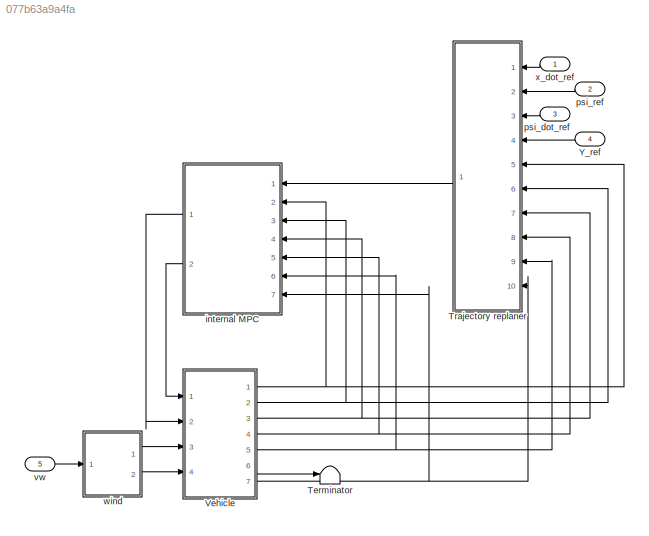
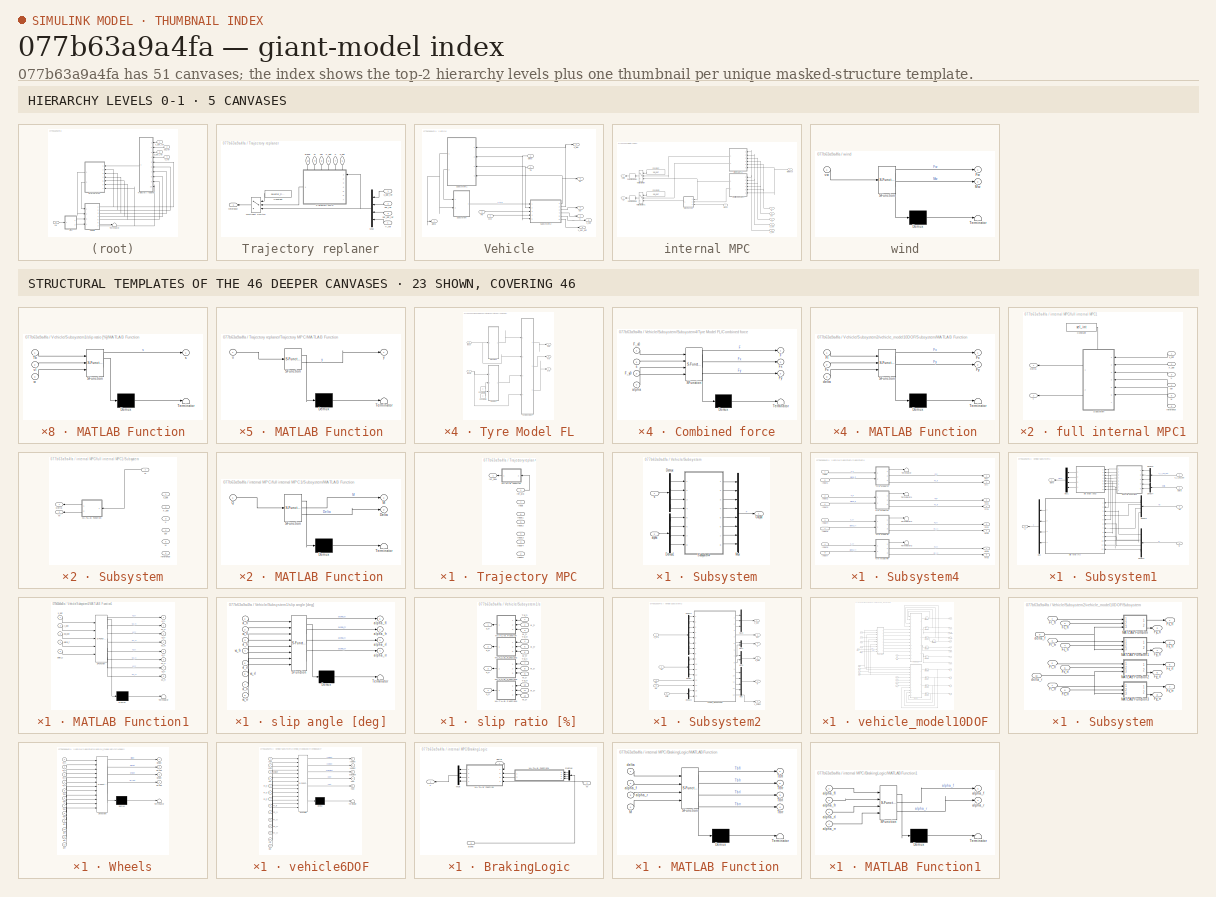
[diagram: thumbnail index - top-2 hierarchy levels (5 canvases) + 23 structural-template representatives of the remaining 46 canvases]
MODEL slx_077b63a9a4fa
KIND model
CONFIG AbsTol = auto
CONFIG EnableMultiTasking = off
CONFIG FixedStep = auto
CONFIG MaxStep = auto
CONFIG MinStep = auto
CONFIG RelTol = 1e-3
CONFIG SampleTimeConstraint = Unconstrained
CONFIG Solver = VariableStepAuto
CONFIG SolverName = VariableStepAuto
CONFIG StartTime = 0.0
CONFIG StopTime = 10.0
BLOCK [Terminator] Terminator
BLOCK [SubSystem] Trajectory replaner
  Ports = [10, 1]
BLOCK [Constant] Trajectory replaner/Constant
  NameLocation = top
  Value = selector_traj
BLOCK [MultiPortSwitch] Trajectory replaner/Multiport Switch
  InputSameDT = off
  Inputs = 2
  NameLocation = top
  Ports = [3, 1]
  SaturateOnIntegerOverflow = off
BLOCK [Mux] Trajectory replaner/Mux
  DisplayOption = bar
  NameLocation = top
  Ports = [4, 1]
BLOCK [SubSystem] Trajectory replaner/Trajectory MPC
  PortSchema = {"entries":[{"content":{"sides":[{"content":{"connectorIds":["In1"]},"type":"ConnectorPlacement.EquallySpacedRectSide","uuid":"5ec2c832-fa9f-493b-8380-016dd887c842"},{"content":{"connectorIds":["Out1"],"side":"RIGHT"},"type":"ConnectorPlacement.EquallySpacedRectSide","uuid":"21ee5341-71c7-4b30-8141-5e8e6df31cb2"},{"content":{"connectorIds":["In2","In3","In4","In5","In6","In7"],"side":"TOP"},"type"...<+275ch>
  Ports = [7, 1]
BLOCK [Inport] Trajectory replaner/Trajectory MPC/Input
  Port = 7
BLOCK [Inport] Trajectory replaner/Trajectory MPC/Input1
  Port = 6
BLOCK [Inport] Trajectory replaner/Trajectory MPC/Input2
  Port = 5
BLOCK [Inport] Trajectory replaner/Trajectory MPC/Input3
  Port = 4
BLOCK [Inport] Trajectory replaner/Trajectory MPC/Input4
  Port = 3
BLOCK [Inport] Trajectory replaner/Trajectory MPC/Input5
  Port = 2
BLOCK [SubSystem] Trajectory replaner/Trajectory MPC/MATLAB Function
  ErrorFcn = Stateflow.Translate.translate
  NameLocation = top
  PermitHierarchicalResolution = ExplicitOnly
  Ports = [1, 1]
  SFBlockType = MATLAB Function
  TreatAsAtomicUnit = on
BLOCK [Demux] Trajectory replaner/Trajectory MPC/MATLAB Function/ Demux 
  Outputs = 1
  Ports = [1, 1]
BLOCK [S-Function] Trajectory replaner/Trajectory MPC/MATLAB Function/ SFunction 
  EnableBusSupport = off
  FunctionName = sf_sfun
  PortCounts = [1 2]
  Ports = [1, 2]
  SFcnIsStateOwnerBlock = off
  SFunctionDeploymentMode = off
  Tag = Stateflow S-Function 30
BLOCK [Terminator] Trajectory replaner/Trajectory MPC/MATLAB Function/ Terminator 
BLOCK [Inport] Trajectory replaner/Trajectory MPC/MATLAB Function/u
BLOCK [Outport] Trajectory replaner/Trajectory MPC/MATLAB Function/y
BLOCK [Outport] Trajectory replaner/Trajectory MPC/ref_new
BLOCK [Inport] Trajectory replaner/Trajectory MPC/ref_old
BLOCK [Inport] Trajectory replaner/X
  NameLocation = left
  Port = 7
BLOCK [Inport] Trajectory replaner/X_dot
  NameLocation = left
  Port = 6
BLOCK [Inport] Trajectory replaner/Y_ref
  Port = 4
BLOCK [Inport] Trajectory replaner/alpha
  NameLocation = left
  Port = 10
BLOCK [Inport] Trajectory replaner/psi
  NameLocation = left
  Port = 8
BLOCK [Inport] Trajectory replaner/psi_dot_ref
  NameLocation = top
  Port = 3
BLOCK [Inport] Trajectory replaner/psi_ref
  NameLocation = top
  Port = 2
BLOCK [Outport] Trajectory replaner/refernece
BLOCK [Inport] Trajectory replaner/w
  NameLocation = left
  Port = 9
BLOCK [Inport] Trajectory replaner/x_dot
  NameLocation = left
  Port = 5
BLOCK [Inport] Trajectory replaner/x_dot_ref
BLOCK [SubSystem] Vehicle
  Ports = [4, 7]
BLOCK [Inport] Vehicle/Fw
  Port = 3
BLOCK [Inport] Vehicle/Mw
  Port = 4
BLOCK [SubSystem] Vehicle/Subsystem
  Ports = [2, 1]
BLOCK [Demux] Vehicle/Subsystem/Demux
  Ports = [1, 4]
BLOCK [Demux] Vehicle/Subsystem/Demux1
  Ports = [1, 4]
BLOCK [Mux] Vehicle/Subsystem/Mux
  DisplayOption = bar
  Inputs = 8
  Ports = [8, 1]
BLOCK [Outport] Vehicle/Subsystem/Output
  IconDisplay = Signal name
BLOCK [SubSystem] Vehicle/Subsystem/Subsystem4
  Ports = [8, 8]
BLOCK [Outport] Vehicle/Subsystem/Subsystem4/Fxfl
  IconDisplay = Signal name
BLOCK [Outport] Vehicle/Subsystem/Subsystem4/Fxfl1
  IconDisplay = Signal name
  Port = 3
BLOCK [Outport] Vehicle/Subsystem/Subsystem4/Fxfl2
  IconDisplay = Signal name
  Port = 5
BLOCK [Outport] Vehicle/Subsystem/Subsystem4/Fxfl3
  IconDisplay = Signal name
  Port = 7
BLOCK [Outport] Vehicle/Subsystem/Subsystem4/Fyfl
  IconDisplay = Signal name
  Port = 2
BLOCK [Outport] Vehicle/Subsystem/Subsystem4/Fyfl1
  IconDisplay = Signal name
  Port = 4
BLOCK [Outport] Vehicle/Subsystem/Subsystem4/Fyfl2
  IconDisplay = Signal name
  Port = 6
BLOCK [Outport] Vehicle/Subsystem/Subsystem4/Fyfl3
  IconDisplay = Signal name
  Port = 8
BLOCK [Inport] Vehicle/Subsystem/Subsystem4/Input
  IconDisplay = Signal name
BLOCK [Inport] Vehicle/Subsystem/Subsystem4/Input1
  IconDisplay = Signal name
  Port = 5
BLOCK [Inport] Vehicle/Subsystem/Subsystem4/Input2
  IconDisplay = Signal name
  Port = 2
BLOCK [Inport] Vehicle/Subsystem/Subsystem4/Input3
  IconDisplay = Signal name
  Port = 6
BLOCK [Inport] Vehicle/Subsystem/Subsystem4/Input4
  IconDisplay = Signal name
  Port = 3
BLOCK [Inport] Vehicle/Subsystem/Subsystem4/Input5
  IconDisplay = Signal name
  Port = 7
BLOCK [Inport] Vehicle/Subsystem/Subsystem4/Input6
  IconDisplay = Signal name
  Port = 4
BLOCK [Inport] Vehicle/Subsystem/Subsystem4/Input7
  IconDisplay = Signal name
  Port = 8
BLOCK [Terminator] Vehicle/Subsystem/Subsystem4/Terminator
BLOCK [Terminator] Vehicle/Subsystem/Subsystem4/Terminator1
BLOCK [Terminator] Vehicle/Subsystem/Subsystem4/Terminator2
BLOCK [Terminator] Vehicle/Subsystem/Subsystem4/Terminator3
BLOCK [SubSystem] Vehicle/Subsystem/Subsystem4/Tyre Model FL
  Ports = [2, 3]
BLOCK [SubSystem] Vehicle/Subsystem/Subsystem4/Tyre Model FL/Combined force
  ErrorFcn = Stateflow.Translate.translate
  PermitHierarchicalResolution = ExplicitOnly
  Ports = [4, 3]
  SFBlockType = MATLAB Function
  TreatAsAtomicUnit = on
BLOCK [Demux] Vehicle/Subsystem/Subsystem4/Tyre Model FL/Combined force/ Demux 
  Outputs = 1
  Ports = [1, 1]
BLOCK [S-Function] Vehicle/Subsystem/Subsystem4/Tyre Model FL/Combined force/ SFunction 
  EnableBusSupport = on
  FunctionName = sf_sfun
  PortCounts = [4 4]
  Ports = [4, 4]
  SFcnIsStateOwnerBlock = off
  SFunctionDeploymentMode = off
  Tag = Stateflow S-Function 3
BLOCK [Terminator] Vehicle/Subsystem/Subsystem4/Tyre Model FL/Combined force/ Terminator 
BLOCK [Outport] Vehicle/Subsystem/Subsystem4/Tyre Model FL/Combined force/F
BLOCK [Inport] Vehicle/Subsystem/Subsystem4/Tyre Model FL/Combined force/F_x0
BLOCK [Inport] Vehicle/Subsystem/Subsystem4/Tyre Model FL/Combined force/F_y0
  Port = 3
BLOCK [Outport] Vehicle/Subsystem/Subsystem4/Tyre Model FL/Combined force/Fx
  Port = 2
BLOCK [Outport] Vehicle/Subsystem/Subsystem4/Tyre Model FL/Combined force/Fy
  Port = 3
BLOCK [Inport] Vehicle/Subsystem/Subsystem4/Tyre Model FL/Combined force/alpha
  Port = 4
BLOCK [Inport] Vehicle/Subsystem/Subsystem4/Tyre Model FL/Combined force/s
  Port = 2
BLOCK [Constant] Vehicle/Subsystem/Subsystem4/Tyre Model FL/Constant5
  Value = 0
BLOCK [Constant] Vehicle/Subsystem/Subsystem4/Tyre Model FL/Constant6
  Value = 0
BLOCK [Outport] Vehicle/Subsystem/Subsystem4/Tyre Model FL/Fxfl
  IconDisplay = Signal name
  Port = 2
BLOCK [Outport] Vehicle/Subsystem/Subsystem4/Tyre Model FL/Fyfl
  IconDisplay = Signal name
  Port = 3
BLOCK [Inport] Vehicle/Subsystem/Subsystem4/Tyre Model FL/Input
  IconDisplay = Signal name
BLOCK [Inport] Vehicle/Subsystem/Subsystem4/Tyre Model FL/Input1
  IconDisplay = Signal name
  Port = 2
BLOCK [Outport] Vehicle/Subsystem/Subsystem4/Tyre Model FL/Out1
  IconDisplay = Signal name
BLOCK [SubSystem] Vehicle/Subsystem/Subsystem4/Tyre Model FL/brake force 
  ErrorFcn = Stateflow.Translate.translate
  PermitHierarchicalResolution = ExplicitOnly
  Ports = [1, 1]
  SFBlockType = MATLAB Function
  TreatAsAtomicUnit = on
BLOCK [Demux] Vehicle/Subsystem/Subsystem4/Tyre Model FL/brake force / Demux 
  Outputs = 1
  Ports = [1, 1]
BLOCK [S-Function] Vehicle/Subsystem/Subsystem4/Tyre Model FL/brake force / SFunction 
  EnableBusSupport = on
  FunctionName = sf_sfun
  Parameters = Fz_f,b0,b1,b2,b3,b4,b5,b6,b7,b8,mu
  PortCounts = [1 2]
  Ports = [1, 2]
  SFcnIsStateOwnerBlock = off
  SFunctionDeploymentMode = off
  Tag = Stateflow S-Function 2
BLOCK [Terminator] Vehicle/Subsystem/Subsystem4/Tyre Model FL/brake force / Terminator 
BLOCK [Outport] Vehicle/Subsystem/Subsystem4/Tyre Model FL/brake force /F_x0
BLOCK [Inport] Vehicle/Subsystem/Subsystem4/Tyre Model FL/brake force /s
BLOCK [SubSystem] Vehicle/Subsystem/Subsystem4/Tyre Model FL/side force
  ErrorFcn = Stateflow.Translate.translate
  PermitHierarchicalResolution = ExplicitOnly
  Ports = [3, 1]
  SFBlockType = MATLAB Function
  TreatAsAtomicUnit = on
BLOCK [Demux] Vehicle/Subsystem/Subsystem4/Tyre Model FL/side force/ Demux 
  Outputs = 1
  Ports = [1, 1]
BLOCK [S-Function] Vehicle/Subsystem/Subsystem4/Tyre Model FL/side force/ SFunction 
  EnableBusSupport = on
  FunctionName = sf_sfun
  Parameters = Fz_r,a0,a1,a2,a3,a4,a5,a6,a7,a8,mu
  PortCounts = [3 2]
  Ports = [3, 2]
  SFcnIsStateOwnerBlock = off
  SFunctionDeploymentMode = off
  Tag = Stateflow S-Function 1
BLOCK [Terminator] Vehicle/Subsystem/Subsystem4/Tyre Model FL/side force/ Terminator 
BLOCK [Outport] Vehicle/Subsystem/Subsystem4/Tyre Model FL/side force/F_y0
BLOCK [Inport] Vehicle/Subsystem/Subsystem4/Tyre Model FL/side force/Sh
  Port = 3
BLOCK [Inport] Vehicle/Subsystem/Subsystem4/Tyre Model FL/side force/Sv
  Port = 2
BLOCK [Inport] Vehicle/Subsystem/Subsystem4/Tyre Model FL/side force/alpha
BLOCK [SubSystem] Vehicle/Subsystem/Subsystem4/Tyre Model FR
  Ports = [2, 3]
BLOCK [SubSystem] Vehicle/Subsystem/Subsystem4/Tyre Model FR/Combined force
  ErrorFcn = Stateflow.Translate.translate
  PermitHierarchicalResolution = ExplicitOnly
  Ports = [4, 3]
  SFBlockType = MATLAB Function
  TreatAsAtomicUnit = on
BLOCK [Demux] Vehicle/Subsystem/Subsystem4/Tyre Model FR/Combined force/ Demux 
  Outputs = 1
  Ports = [1, 1]
BLOCK [S-Function] Vehicle/Subsystem/Subsystem4/Tyre Model FR/Combined force/ SFunction 
  EnableBusSupport = on
  FunctionName = sf_sfun
  PortCounts = [4 4]
  Ports = [4, 4]
  SFcnIsStateOwnerBlock = off
  SFunctionDeploymentMode = off
  Tag = Stateflow S-Function 4
BLOCK [Terminator] Vehicle/Subsystem/Subsystem4/Tyre Model FR/Combined force/ Terminator 
BLOCK [Outport] Vehicle/Subsystem/Subsystem4/Tyre Model FR/Combined force/F
BLOCK [Inport] Vehicle/Subsystem/Subsystem4/Tyre Model FR/Combined force/F_x0
BLOCK [Inport] Vehicle/Subsystem/Subsystem4/Tyre Model FR/Combined force/F_y0
  Port = 3
BLOCK [Outport] Vehicle/Subsystem/Subsystem4/Tyre Model FR/Combined force/Fx
  Port = 2
BLOCK [Outport] Vehicle/Subsystem/Subsystem4/Tyre Model FR/Combined force/Fy
  Port = 3
BLOCK [Inport] Vehicle/Subsystem/Subsystem4/Tyre Model FR/Combined force/alpha
  Port = 4
BLOCK [Inport] Vehicle/Subsystem/Subsystem4/Tyre Model FR/Combined force/s
  Port = 2
BLOCK [Constant] Vehicle/Subsystem/Subsystem4/Tyre Model FR/Constant5
  Value = 0
BLOCK [Constant] Vehicle/Subsystem/Subsystem4/Tyre Model FR/Constant6
  Value = 0
BLOCK [Outport] Vehicle/Subsystem/Subsystem4/Tyre Model FR/Fxfl
  IconDisplay = Signal name
  Port = 2
BLOCK [Outport] Vehicle/Subsystem/Subsystem4/Tyre Model FR/Fyfl
  IconDisplay = Signal name
  Port = 3
BLOCK [Inport] Vehicle/Subsystem/Subsystem4/Tyre Model FR/Input
  IconDisplay = Signal name
BLOCK [Inport] Vehicle/Subsystem/Subsystem4/Tyre Model FR/Input1
  IconDisplay = Signal name
  Port = 2
BLOCK [Outport] Vehicle/Subsystem/Subsystem4/Tyre Model FR/Out1
  IconDisplay = Signal name
BLOCK [SubSystem] Vehicle/Subsystem/Subsystem4/Tyre Model FR/brake force 
  ErrorFcn = Stateflow.Translate.translate
  PermitHierarchicalResolution = ExplicitOnly
  Ports = [1, 1]
  SFBlockType = MATLAB Function
  TreatAsAtomicUnit = on
BLOCK [Demux] Vehicle/Subsystem/Subsystem4/Tyre Model FR/brake force / Demux 
  Outputs = 1
  Ports = [1, 1]
BLOCK [S-Function] Vehicle/Subsystem/Subsystem4/Tyre Model FR/brake force / SFunction 
  EnableBusSupport = on
  FunctionName = sf_sfun
  Parameters = Fz_f,b0,b1,b2,b3,b4,b5,b6,b7,b8,mu
  PortCounts = [1 2]
  Ports = [1, 2]
  SFcnIsStateOwnerBlock = off
  SFunctionDeploymentMode = off
  Tag = Stateflow S-Function 5
BLOCK [Terminator] Vehicle/Subsystem/Subsystem4/Tyre Model FR/brake force / Terminator 
BLOCK [Outport] Vehicle/Subsystem/Subsystem4/Tyre Model FR/brake force /F_x0
BLOCK [Inport] Vehicle/Subsystem/Subsystem4/Tyre Model FR/brake force /s
BLOCK [SubSystem] Vehicle/Subsystem/Subsystem4/Tyre Model FR/side force
  ErrorFcn = Stateflow.Translate.translate
  PermitHierarchicalResolution = ExplicitOnly
  Ports = [3, 1]
  SFBlockType = MATLAB Function
  TreatAsAtomicUnit = on
BLOCK [Demux] Vehicle/Subsystem/Subsystem4/Tyre Model FR/side force/ Demux 
  Outputs = 1
  Ports = [1, 1]
BLOCK [S-Function] Vehicle/Subsystem/Subsystem4/Tyre Model FR/side force/ SFunction 
  EnableBusSupport = on
  FunctionName = sf_sfun
  Parameters = Fz_r,a0,a1,a2,a3,a4,a5,a6,a7,a8,mu
  PortCounts = [3 2]
  Ports = [3, 2]
  SFcnIsStateOwnerBlock = off
  SFunctionDeploymentMode = off
  Tag = Stateflow S-Function 6
BLOCK [Terminator] Vehicle/Subsystem/Subsystem4/Tyre Model FR/side force/ Terminator 
BLOCK [Outport] Vehicle/Subsystem/Subsystem4/Tyre Model FR/side force/F_y0
BLOCK [Inport] Vehicle/Subsystem/Subsystem4/Tyre Model FR/side force/Sh
  Port = 3
BLOCK [Inport] Vehicle/Subsystem/Subsystem4/Tyre Model FR/side force/Sv
  Port = 2
BLOCK [Inport] Vehicle/Subsystem/Subsystem4/Tyre Model FR/side force/alpha
BLOCK [SubSystem] Vehicle/Subsystem/Subsystem4/Tyre Model RL
  Ports = [2, 3]
BLOCK [SubSystem] Vehicle/Subsystem/Subsystem4/Tyre Model RL/Combined force
  ErrorFcn = Stateflow.Translate.translate
  PermitHierarchicalResolution = ExplicitOnly
  Ports = [4, 3]
  SFBlockType = MATLAB Function
  TreatAsAtomicUnit = on
BLOCK [Demux] Vehicle/Subsystem/Subsystem4/Tyre Model RL/Combined force/ Demux 
  Outputs = 1
  Ports = [1, 1]
BLOCK [S-Function] Vehicle/Subsystem/Subsystem4/Tyre Model RL/Combined force/ SFunction 
  EnableBusSupport = on
  FunctionName = sf_sfun
  PortCounts = [4 4]
  Ports = [4, 4]
  SFcnIsStateOwnerBlock = off
  SFunctionDeploymentMode = off
  Tag = Stateflow S-Function 7
BLOCK [Terminator] Vehicle/Subsystem/Subsystem4/Tyre Model RL/Combined force/ Terminator 
BLOCK [Outport] Vehicle/Subsystem/Subsystem4/Tyre Model RL/Combined force/F
BLOCK [Inport] Vehicle/Subsystem/Subsystem4/Tyre Model RL/Combined force/F_x0
BLOCK [Inport] Vehicle/Subsystem/Subsystem4/Tyre Model RL/Combined force/F_y0
  Port = 3
BLOCK [Outport] Vehicle/Subsystem/Subsystem4/Tyre Model RL/Combined force/Fx
  Port = 2
BLOCK [Outport] Vehicle/Subsystem/Subsystem4/Tyre Model RL/Combined force/Fy
  Port = 3
BLOCK [Inport] Vehicle/Subsystem/Subsystem4/Tyre Model RL/Combined force/alpha
  Port = 4
BLOCK [Inport] Vehicle/Subsystem/Subsystem4/Tyre Model RL/Combined force/s
  Port = 2
BLOCK [Constant] Vehicle/Subsystem/Subsystem4/Tyre Model RL/Constant5
  Value = 0
BLOCK [Constant] Vehicle/Subsystem/Subsystem4/Tyre Model RL/Constant6
  Value = 0
BLOCK [Outport] Vehicle/Subsystem/Subsystem4/Tyre Model RL/Fxfl
  IconDisplay = Signal name
  Port = 2
BLOCK [Outport] Vehicle/Subsystem/Subsystem4/Tyre Model RL/Fyfl
  IconDisplay = Signal name
  Port = 3
BLOCK [Inport] Vehicle/Subsystem/Subsystem4/Tyre Model RL/Input
  IconDisplay = Signal name
BLOCK [Inport] Vehicle/Subsystem/Subsystem4/Tyre Model RL/Input1
  IconDisplay = Signal name
  Port = 2
BLOCK [Outport] Vehicle/Subsystem/Subsystem4/Tyre Model RL/Out1
  IconDisplay = Signal name
BLOCK [SubSystem] Vehicle/Subsystem/Subsystem4/Tyre Model RL/brake force 
  ErrorFcn = Stateflow.Translate.translate
  PermitHierarchicalResolution = ExplicitOnly
  Ports = [1, 1]
  SFBlockType = MATLAB Function
  TreatAsAtomicUnit = on
BLOCK [Demux] Vehicle/Subsystem/Subsystem4/Tyre Model RL/brake force / Demux 
  Outputs = 1
  Ports = [1, 1]
BLOCK [S-Function] Vehicle/Subsystem/Subsystem4/Tyre Model RL/brake force / SFunction 
  EnableBusSupport = on
  FunctionName = sf_sfun
  Parameters = Fz_f,b0,b1,b2,b3,b4,b5,b6,b7,b8,mu
  PortCounts = [1 2]
  Ports = [1, 2]
  SFcnIsStateOwnerBlock = off
  SFunctionDeploymentMode = off
  Tag = Stateflow S-Function 8
BLOCK [Terminator] Vehicle/Subsystem/Subsystem4/Tyre Model RL/brake force / Terminator 
BLOCK [Outport] Vehicle/Subsystem/Subsystem4/Tyre Model RL/brake force /F_x0
BLOCK [Inport] Vehicle/Subsystem/Subsystem4/Tyre Model RL/brake force /s
BLOCK [SubSystem] Vehicle/Subsystem/Subsystem4/Tyre Model RL/side force
  ErrorFcn = Stateflow.Translate.translate
  PermitHierarchicalResolution = ExplicitOnly
  Ports = [3, 1]
  SFBlockType = MATLAB Function
  TreatAsAtomicUnit = on
BLOCK [Demux] Vehicle/Subsystem/Subsystem4/Tyre Model RL/side force/ Demux 
  Outputs = 1
  Ports = [1, 1]
BLOCK [S-Function] Vehicle/Subsystem/Subsystem4/Tyre Model RL/side force/ SFunction 
  EnableBusSupport = on
  FunctionName = sf_sfun
  Parameters = Fz_r,a0,a1,a2,a3,a4,a5,a6,a7,a8,mu
  PortCounts = [3 2]
  Ports = [3, 2]
  SFcnIsStateOwnerBlock = off
  SFunctionDeploymentMode = off
  Tag = Stateflow S-Function 9
BLOCK [Terminator] Vehicle/Subsystem/Subsystem4/Tyre Model RL/side force/ Terminator 
BLOCK [Outport] Vehicle/Subsystem/Subsystem4/Tyre Model RL/side force/F_y0
BLOCK [Inport] Vehicle/Subsystem/Subsystem4/Tyre Model RL/side force/Sh
  Port = 3
BLOCK [Inport] Vehicle/Subsystem/Subsystem4/Tyre Model RL/side force/Sv
  Port = 2
BLOCK [Inport] Vehicle/Subsystem/Subsystem4/Tyre Model RL/side force/alpha
BLOCK [SubSystem] Vehicle/Subsystem/Subsystem4/Tyre Model RR
  Ports = [2, 3]
BLOCK [SubSystem] Vehicle/Subsystem/Subsystem4/Tyre Model RR/Combined force
  ErrorFcn = Stateflow.Translate.translate
  PermitHierarchicalResolution = ExplicitOnly
  Ports = [4, 3]
  SFBlockType = MATLAB Function
  TreatAsAtomicUnit = on
BLOCK [Demux] Vehicle/Subsystem/Subsystem4/Tyre Model RR/Combined force/ Demux 
  Outputs = 1
  Ports = [1, 1]
BLOCK [S-Function] Vehicle/Subsystem/Subsystem4/Tyre Model RR/Combined force/ SFunction 
  EnableBusSupport = on
  FunctionName = sf_sfun
  PortCounts = [4 4]
  Ports = [4, 4]
  SFcnIsStateOwnerBlock = off
  SFunctionDeploymentMode = off
  Tag = Stateflow S-Function 10
BLOCK [Terminator] Vehicle/Subsystem/Subsystem4/Tyre Model RR/Combined force/ Terminator 
BLOCK [Outport] Vehicle/Subsystem/Subsystem4/Tyre Model RR/Combined force/F
BLOCK [Inport] Vehicle/Subsystem/Subsystem4/Tyre Model RR/Combined force/F_x0
BLOCK [Inport] Vehicle/Subsystem/Subsystem4/Tyre Model RR/Combined force/F_y0
  Port = 3
BLOCK [Outport] Vehicle/Subsystem/Subsystem4/Tyre Model RR/Combined force/Fx
  Port = 2
BLOCK [Outport] Vehicle/Subsystem/Subsystem4/Tyre Model RR/Combined force/Fy
  Port = 3
BLOCK [Inport] Vehicle/Subsystem/Subsystem4/Tyre Model RR/Combined force/alpha
  Port = 4
BLOCK [Inport] Vehicle/Subsystem/Subsystem4/Tyre Model RR/Combined force/s
  Port = 2
BLOCK [Constant] Vehicle/Subsystem/Subsystem4/Tyre Model RR/Constant5
  Value = 0
BLOCK [Constant] Vehicle/Subsystem/Subsystem4/Tyre Model RR/Constant6
  Value = 0
BLOCK [Outport] Vehicle/Subsystem/Subsystem4/Tyre Model RR/Fxfl
  IconDisplay = Signal name
  Port = 2
BLOCK [Outport] Vehicle/Subsystem/Subsystem4/Tyre Model RR/Fyfl
  IconDisplay = Signal name
  Port = 3
BLOCK [Inport] Vehicle/Subsystem/Subsystem4/Tyre Model RR/Input
  IconDisplay = Signal name
BLOCK [Inport] Vehicle/Subsystem/Subsystem4/Tyre Model RR/Input1
  IconDisplay = Signal name
  Port = 2
BLOCK [Outport] Vehicle/Subsystem/Subsystem4/Tyre Model RR/Out1
  IconDisplay = Signal name
BLOCK [SubSystem] Vehicle/Subsystem/Subsystem4/Tyre Model RR/brake force 
  ErrorFcn = Stateflow.Translate.translate
  PermitHierarchicalResolution = ExplicitOnly
  Ports = [1, 1]
  SFBlockType = MATLAB Function
  TreatAsAtomicUnit = on
BLOCK [Demux] Vehicle/Subsystem/Subsystem4/Tyre Model RR/brake force / Demux 
  Outputs = 1
  Ports = [1, 1]
BLOCK [S-Function] Vehicle/Subsystem/Subsystem4/Tyre Model RR/brake force / SFunction 
  EnableBusSupport = on
  FunctionName = sf_sfun
  Parameters = Fz_f,b0,b1,b2,b3,b4,b5,b6,b7,b8,mu
  PortCounts = [1 2]
  Ports = [1, 2]
  SFcnIsStateOwnerBlock = off
  SFunctionDeploymentMode = off
  Tag = Stateflow S-Function 11
BLOCK [Terminator] Vehicle/Subsystem/Subsystem4/Tyre Model RR/brake force / Terminator 
BLOCK [Outport] Vehicle/Subsystem/Subsystem4/Tyre Model RR/brake force /F_x0
BLOCK [Inport] Vehicle/Subsystem/Subsystem4/Tyre Model RR/brake force /s
BLOCK [SubSystem] Vehicle/Subsystem/Subsystem4/Tyre Model RR/side force
  ErrorFcn = Stateflow.Translate.translate
  PermitHierarchicalResolution = ExplicitOnly
  Ports = [3, 1]
  SFBlockType = MATLAB Function
  TreatAsAtomicUnit = on
BLOCK [Demux] Vehicle/Subsystem/Subsystem4/Tyre Model RR/side force/ Demux 
  Outputs = 1
  Ports = [1, 1]
BLOCK [S-Function] Vehicle/Subsystem/Subsystem4/Tyre Model RR/side force/ SFunction 
  EnableBusSupport = on
  FunctionName = sf_sfun
  Parameters = Fz_r,a0,a1,a2,a3,a4,a5,a6,a7,a8,mu
  PortCounts = [3 2]
  Ports = [3, 2]
  SFcnIsStateOwnerBlock = off
  SFunctionDeploymentMode = off
  Tag = Stateflow S-Function 12
BLOCK [Terminator] Vehicle/Subsystem/Subsystem4/Tyre Model RR/side force/ Terminator 
BLOCK [Outport] Vehicle/Subsystem/Subsystem4/Tyre Model RR/side force/F_y0
BLOCK [Inport] Vehicle/Subsystem/Subsystem4/Tyre Model RR/side force/Sh
  Port = 3
BLOCK [Inport] Vehicle/Subsystem/Subsystem4/Tyre Model RR/side force/Sv
  Port = 2
BLOCK [Inport] Vehicle/Subsystem/Subsystem4/Tyre Model RR/side force/alpha
BLOCK [Inport] Vehicle/Subsystem/alpha
  IconDisplay = Signal name
  Port = 2
BLOCK [Inport] Vehicle/Subsystem/s
  IconDisplay = Signal name
BLOCK [SubSystem] Vehicle/Subsystem1
  NameLocation = top
  Ports = [4, 2]
BLOCK [Demux] Vehicle/Subsystem1/Demux2
  NameLocation = top
  Ports = [1, 4]
BLOCK [Demux] Vehicle/Subsystem1/Demux3
  NameLocation = top
  Ports = [1, 4]
BLOCK [Demux] Vehicle/Subsystem1/Demux4
  NameLocation = top
  Outputs = 2
  Ports = [1, 2]
BLOCK [Demux] Vehicle/Subsystem1/Demux5
  NameLocation = top
  Outputs = 3
  Ports = [1, 3]
BLOCK [SubSystem] Vehicle/Subsystem1/MATLAB Function1
  ErrorFcn = Stateflow.Translate.translate
  NameLocation = top
  PermitHierarchicalResolution = ExplicitOnly
  Ports = [5, 8]
  SFBlockType = MATLAB Function
  TreatAsAtomicUnit = on
BLOCK [Demux] Vehicle/Subsystem1/MATLAB Function1/ Demux 
  Outputs = 1
  Ports = [1, 1]
BLOCK [S-Function] Vehicle/Subsystem1/MATLAB Function1/ SFunction 
  EnableBusSupport = on
  FunctionName = sf_sfun
  Parameters = a,b,c
  PortCounts = [5 9]
  Ports = [5, 9]
  SFcnIsStateOwnerBlock = off
  SFunctionDeploymentMode = off
  Tag = Stateflow S-Function 22
BLOCK [Terminator] Vehicle/Subsystem1/MATLAB Function1/ Terminator 
BLOCK [Inport] Vehicle/Subsystem1/MATLAB Function1/delta_f
  Port = 4
BLOCK [Inport] Vehicle/Subsystem1/MATLAB Function1/delta_r
  Port = 5
BLOCK [Inport] Vehicle/Subsystem1/MATLAB Function1/psi_dot
  Port = 3
BLOCK [Outport] Vehicle/Subsystem1/MATLAB Function1/vc_fl
  Port = 2
BLOCK [Outport] Vehicle/Subsystem1/MATLAB Function1/vc_fr
  Port = 4
BLOCK [Outport] Vehicle/Subsystem1/MATLAB Function1/vc_rl
  Port = 6
BLOCK [Outport] Vehicle/Subsystem1/MATLAB Function1/vc_rr
  Port = 8
BLOCK [Outport] Vehicle/Subsystem1/MATLAB Function1/vl_fl
BLOCK [Outport] Vehicle/Subsystem1/MATLAB Function1/vl_fr
  Port = 3
BLOCK [Outport] Vehicle/Subsystem1/MATLAB Function1/vl_rl
  Port = 5
BLOCK [Outport] Vehicle/Subsystem1/MATLAB Function1/vl_rr
  Port = 7
BLOCK [Inport] Vehicle/Subsystem1/MATLAB Function1/x_dot
BLOCK [Inport] Vehicle/Subsystem1/MATLAB Function1/y_dot
  Port = 2
BLOCK [Mux] Vehicle/Subsystem1/Mux
  DisplayOption = bar
  NameLocation = top
  Ports = [4, 1]
BLOCK [Mux] Vehicle/Subsystem1/Mux1
  DisplayOption = bar
  NameLocation = top
  Ports = [4, 1]
BLOCK [Inport] Vehicle/Subsystem1/Tb
  Port = 3
BLOCK [Outport] Vehicle/Subsystem1/alpha
  NameLocation = top
BLOCK [Inport] Vehicle/Subsystem1/delta
  Port = 2
BLOCK [Outport] Vehicle/Subsystem1/s
  NameLocation = top
  Port = 2
BLOCK [SubSystem] Vehicle/Subsystem1/slip angle [deg]
  ErrorFcn = Stateflow.Translate.translate
  PermitHierarchicalResolution = ExplicitOnly
  Ports = [8, 4]
  SFBlockType = MATLAB Function
  TreatAsAtomicUnit = on
BLOCK [Demux] Vehicle/Subsystem1/slip angle [deg]/ Demux 
  Outputs = 1
  Ports = [1, 1]
BLOCK [S-Function] Vehicle/Subsystem1/slip angle [deg]/ SFunction 
  EnableBusSupport = on
  FunctionName = sf_sfun
  PortCounts = [8 5]
  Ports = [8, 5]
  SFcnIsStateOwnerBlock = off
  SFunctionDeploymentMode = off
  Tag = Stateflow S-Function 13
BLOCK [Terminator] Vehicle/Subsystem1/slip angle [deg]/ Terminator 
BLOCK [Outport] Vehicle/Subsystem1/slip angle [deg]/alpha_fl
BLOCK [Outport] Vehicle/Subsystem1/slip angle [deg]/alpha_fr
  Port = 2
BLOCK [Outport] Vehicle/Subsystem1/slip angle [deg]/alpha_rl
  Port = 3
BLOCK [Outport] Vehicle/Subsystem1/slip angle [deg]/alpha_rr
  Port = 4
BLOCK [Inport] Vehicle/Subsystem1/slip angle [deg]/vc_fl
  Port = 2
BLOCK [Inport] Vehicle/Subsystem1/slip angle [deg]/vc_fr
  Port = 4
BLOCK [Inport] Vehicle/Subsystem1/slip angle [deg]/vc_rl
  Port = 6
BLOCK [Inport] Vehicle/Subsystem1/slip angle [deg]/vc_rr
  Port = 8
BLOCK [Inport] Vehicle/Subsystem1/slip angle [deg]/vl_fl
BLOCK [Inport] Vehicle/Subsystem1/slip angle [deg]/vl_fr
  Port = 3
BLOCK [Inport] Vehicle/Subsystem1/slip angle [deg]/vl_rl
  Port = 5
BLOCK [Inport] Vehicle/Subsystem1/slip angle [deg]/vl_rr
  Port = 7
BLOCK [SubSystem] Vehicle/Subsystem1/slip ratio [%]
  NameLocation = top
  Ports = [12, 4]
BLOCK [SubSystem] Vehicle/Subsystem1/slip ratio [%]/MATLAB Function
  ErrorFcn = Stateflow.Translate.translate
  NameLocation = top
  PermitHierarchicalResolution = ExplicitOnly
  Ports = [3, 1]
  SFBlockType = MATLAB Function
  TreatAsAtomicUnit = on
BLOCK [Demux] Vehicle/Subsystem1/slip ratio [%]/MATLAB Function/ Demux 
  Outputs = 1
  Ports = [1, 1]
BLOCK [S-Function] Vehicle/Subsystem1/slip ratio [%]/MATLAB Function/ SFunction 
  EnableBusSupport = on
  FunctionName = sf_sfun
  Parameters = r
  PortCounts = [3 2]
  Ports = [3, 2]
  SFcnIsStateOwnerBlock = off
  SFunctionDeploymentMode = off
  Tag = Stateflow S-Function 21
BLOCK [Terminator] Vehicle/Subsystem1/slip ratio [%]/MATLAB Function/ Terminator 
BLOCK [Inport] Vehicle/Subsystem1/slip ratio [%]/MATLAB Function/Tb
BLOCK [Outport] Vehicle/Subsystem1/slip ratio [%]/MATLAB Function/s
BLOCK [Inport] Vehicle/Subsystem1/slip ratio [%]/MATLAB Function/vl
  Port = 2
BLOCK [Inport] Vehicle/Subsystem1/slip ratio [%]/MATLAB Function/w
  Port = 3
BLOCK [SubSystem] Vehicle/Subsystem1/slip ratio [%]/MATLAB Function2
  ErrorFcn = Stateflow.Translate.translate
  NameLocation = top
  PermitHierarchicalResolution = ExplicitOnly
  Ports = [3, 1]
  SFBlockType = MATLAB Function
  TreatAsAtomicUnit = on
BLOCK [Demux] Vehicle/Subsystem1/slip ratio [%]/MATLAB Function2/ Demux 
  Outputs = 1
  Ports = [1, 1]
BLOCK [S-Function] Vehicle/Subsystem1/slip ratio [%]/MATLAB Function2/ SFunction 
  EnableBusSupport = on
  FunctionName = sf_sfun
  Parameters = r
  PortCounts = [3 2]
  Ports = [3, 2]
  SFcnIsStateOwnerBlock = off
  SFunctionDeploymentMode = off
  Tag = Stateflow S-Function 23
BLOCK [Terminator] Vehicle/Subsystem1/slip ratio [%]/MATLAB Function2/ Terminator 
BLOCK [Inport] Vehicle/Subsystem1/slip ratio [%]/MATLAB Function2/Tb
BLOCK [Outport] Vehicle/Subsystem1/slip ratio [%]/MATLAB Function2/s
BLOCK [Inport] Vehicle/Subsystem1/slip ratio [%]/MATLAB Function2/vl
  Port = 2
BLOCK [Inport] Vehicle/Subsystem1/slip ratio [%]/MATLAB Function2/w
  Port = 3
BLOCK [SubSystem] Vehicle/Subsystem1/slip ratio [%]/MATLAB Function3
  ErrorFcn = Stateflow.Translate.translate
  NameLocation = top
  PermitHierarchicalResolution = ExplicitOnly
  Ports = [3, 1]
  SFBlockType = MATLAB Function
  TreatAsAtomicUnit = on
BLOCK [Demux] Vehicle/Subsystem1/slip ratio [%]/MATLAB Function3/ Demux 
  Outputs = 1
  Ports = [1, 1]
BLOCK [S-Function] Vehicle/Subsystem1/slip ratio [%]/MATLAB Function3/ SFunction 
  EnableBusSupport = on
  FunctionName = sf_sfun
  Parameters = r
  PortCounts = [3 2]
  Ports = [3, 2]
  SFcnIsStateOwnerBlock = off
  SFunctionDeploymentMode = off
  Tag = Stateflow S-Function 24
BLOCK [Terminator] Vehicle/Subsystem1/slip ratio [%]/MATLAB Function3/ Terminator 
BLOCK [Inport] Vehicle/Subsystem1/slip ratio [%]/MATLAB Function3/Tb
BLOCK [Outport] Vehicle/Subsystem1/slip ratio [%]/MATLAB Function3/s
BLOCK [Inport] Vehicle/Subsystem1/slip ratio [%]/MATLAB Function3/vl
  Port = 2
BLOCK [Inport] Vehicle/Subsystem1/slip ratio [%]/MATLAB Function3/w
  Port = 3
BLOCK [SubSystem] Vehicle/Subsystem1/slip ratio [%]/MATLAB Function4
  ErrorFcn = Stateflow.Translate.translate
  NameLocation = top
  PermitHierarchicalResolution = ExplicitOnly
  Ports = [3, 1]
  SFBlockType = MATLAB Function
  TreatAsAtomicUnit = on
BLOCK [Demux] Vehicle/Subsystem1/slip ratio [%]/MATLAB Function4/ Demux 
  Outputs = 1
  Ports = [1, 1]
BLOCK [S-Function] Vehicle/Subsystem1/slip ratio [%]/MATLAB Function4/ SFunction 
  EnableBusSupport = on
  FunctionName = sf_sfun
  Parameters = r
  PortCounts = [3 2]
  Ports = [3, 2]
  SFcnIsStateOwnerBlock = off
  SFunctionDeploymentMode = off
  Tag = Stateflow S-Function 25
BLOCK [Terminator] Vehicle/Subsystem1/slip ratio [%]/MATLAB Function4/ Terminator 
BLOCK [Inport] Vehicle/Subsystem1/slip ratio [%]/MATLAB Function4/Tb
BLOCK [Outport] Vehicle/Subsystem1/slip ratio [%]/MATLAB Function4/s
BLOCK [Inport] Vehicle/Subsystem1/slip ratio [%]/MATLAB Function4/vl
  Port = 2
BLOCK [Inport] Vehicle/Subsystem1/slip ratio [%]/MATLAB Function4/w
  Port = 3
BLOCK [Inport] Vehicle/Subsystem1/slip ratio [%]/Tb_fl
BLOCK [Inport] Vehicle/Subsystem1/slip ratio [%]/Tb_fr
  Port = 4
BLOCK [Inport] Vehicle/Subsystem1/slip ratio [%]/Tb_rl
  Port = 7
BLOCK [Inport] Vehicle/Subsystem1/slip ratio [%]/Tb_rr
  Port = 10
BLOCK [Outport] Vehicle/Subsystem1/slip ratio [%]/s_fl
BLOCK [Outport] Vehicle/Subsystem1/slip ratio [%]/s_fr
  Port = 2
BLOCK [Outport] Vehicle/Subsystem1/slip ratio [%]/s_rl
  Port = 3
BLOCK [Outport] Vehicle/Subsystem1/slip ratio [%]/s_rr
  Port = 4
BLOCK [Inport] Vehicle/Subsystem1/slip ratio [%]/vl_fl
  Port = 2
BLOCK [Inport] Vehicle/Subsystem1/slip ratio [%]/vl_fr
  Port = 5
BLOCK [Inport] Vehicle/Subsystem1/slip ratio [%]/vl_rl
  Port = 8
BLOCK [Inport] Vehicle/Subsystem1/slip ratio [%]/vl_rr
  Port = 11
BLOCK [Inport] Vehicle/Subsystem1/slip ratio [%]/w_fl
  Port = 3
BLOCK [Inport] Vehicle/Subsystem1/slip ratio [%]/w_fr
  Port = 6
BLOCK [Inport] Vehicle/Subsystem1/slip ratio [%]/w_rl
  Port = 9
BLOCK [Inport] Vehicle/Subsystem1/slip ratio [%]/w_rr
  Port = 12
BLOCK [Inport] Vehicle/Subsystem1/w
  NameLocation = top
  Port = 4
BLOCK [Inport] Vehicle/Subsystem1/x_y_psi_dot
BLOCK [SubSystem] Vehicle/Subsystem2
  Ports = [5, 6]
BLOCK [Demux] Vehicle/Subsystem2/Demux
  Ports = [1, 4]
BLOCK [Demux] Vehicle/Subsystem2/Demux1
  Outputs = 8
  Ports = [1, 8]
BLOCK [Demux] Vehicle/Subsystem2/Demux2
  Outputs = 2
  Ports = [1, 2]
BLOCK [Inport] Vehicle/Subsystem2/F_tyre
BLOCK [Inport] Vehicle/Subsystem2/Fw
  Port = 3
BLOCK [Mux] Vehicle/Subsystem2/Mux
  DisplayOption = bar
  Ports = [4, 1]
BLOCK [Mux] Vehicle/Subsystem2/Mux1
  DisplayOption = bar
  Inputs = 2
  Ports = [2, 1]
BLOCK [Mux] Vehicle/Subsystem2/Mux2
  DisplayOption = bar
  Inputs = 2
  Ports = [2, 1]
BLOCK [Mux] Vehicle/Subsystem2/Mux3
  DisplayOption = bar
  Inputs = 3
  Ports = [3, 1]
BLOCK [Inport] Vehicle/Subsystem2/Mw
  Port = 4
BLOCK [Inport] Vehicle/Subsystem2/Tb
  Port = 2
BLOCK [Outport] Vehicle/Subsystem2/X
  Port = 4
BLOCK [Outport] Vehicle/Subsystem2/X_dot
  Port = 5
BLOCK [Inport] Vehicle/Subsystem2/delta
  Port = 5
BLOCK [Outport] Vehicle/Subsystem2/psi
  Port = 3
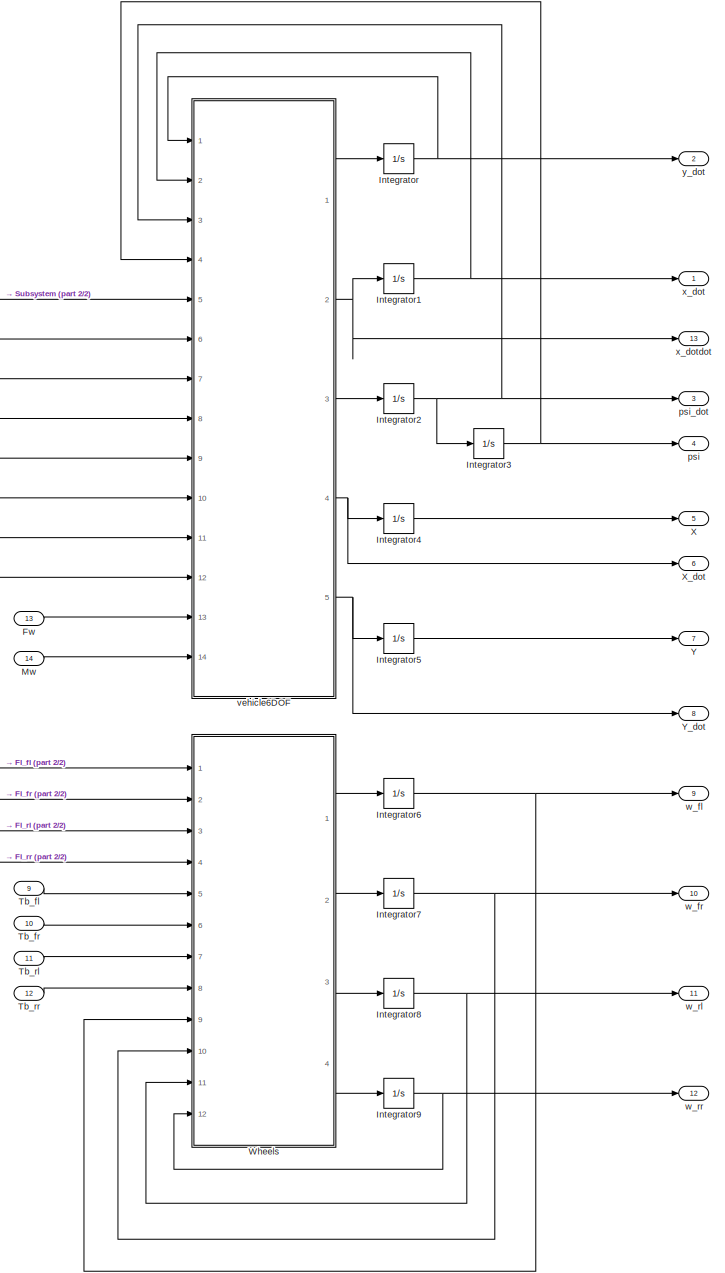
[diagram: Vehicle/Subsystem2/vehicle_model10DOF - part 1/2, right side, full height]
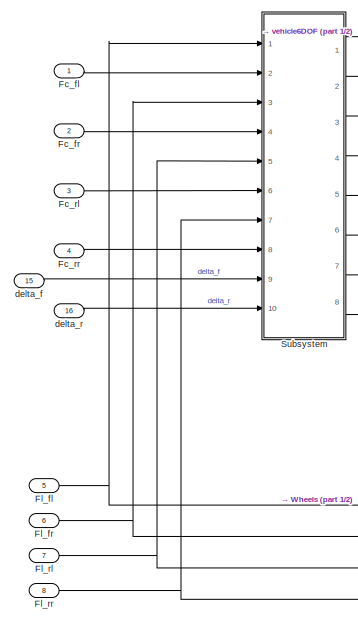
[diagram: Vehicle/Subsystem2/vehicle_model10DOF - part 2/2, middle left region]
BLOCK [SubSystem] Vehicle/Subsystem2/vehicle_model10DOF
  Ports = [16, 13]
BLOCK [Inport] Vehicle/Subsystem2/vehicle_model10DOF/Fc_fl
BLOCK [Inport] Vehicle/Subsystem2/vehicle_model10DOF/Fc_fr
  Port = 2
BLOCK [Inport] Vehicle/Subsystem2/vehicle_model10DOF/Fc_rl
  Port = 3
BLOCK [Inport] Vehicle/Subsystem2/vehicle_model10DOF/Fc_rr
  Port = 4
BLOCK [Inport] Vehicle/Subsystem2/vehicle_model10DOF/Fl_fl
  Port = 5
BLOCK [Inport] Vehicle/Subsystem2/vehicle_model10DOF/Fl_fr
  Port = 6
BLOCK [Inport] Vehicle/Subsystem2/vehicle_model10DOF/Fl_rl
  Port = 7
BLOCK [Inport] Vehicle/Subsystem2/vehicle_model10DOF/Fl_rr
  Port = 8
BLOCK [Inport] Vehicle/Subsystem2/vehicle_model10DOF/Fw
  Port = 13
BLOCK [Integrator] Vehicle/Subsystem2/vehicle_model10DOF/Integrator
  Ports = [1, 1]
BLOCK [Integrator] Vehicle/Subsystem2/vehicle_model10DOF/Integrator1
  Ports = [1, 1]
BLOCK [Integrator] Vehicle/Subsystem2/vehicle_model10DOF/Integrator2
  Ports = [1, 1]
BLOCK [Integrator] Vehicle/Subsystem2/vehicle_model10DOF/Integrator3
  Ports = [1, 1]
BLOCK [Integrator] Vehicle/Subsystem2/vehicle_model10DOF/Integrator4
  Ports = [1, 1]
BLOCK [Integrator] Vehicle/Subsystem2/vehicle_model10DOF/Integrator5
  Ports = [1, 1]
BLOCK [Integrator] Vehicle/Subsystem2/vehicle_model10DOF/Integrator6
  Ports = [1, 1]
BLOCK [Integrator] Vehicle/Subsystem2/vehicle_model10DOF/Integrator7
  Ports = [1, 1]
BLOCK [Integrator] Vehicle/Subsystem2/vehicle_model10DOF/Integrator8
  Ports = [1, 1]
BLOCK [Integrator] Vehicle/Subsystem2/vehicle_model10DOF/Integrator9
  Ports = [1, 1]
BLOCK [Inport] Vehicle/Subsystem2/vehicle_model10DOF/Mw
  Port = 14
BLOCK [SubSystem] Vehicle/Subsystem2/vehicle_model10DOF/Subsystem
  Ports = [10, 8]
BLOCK [Inport] Vehicle/Subsystem2/vehicle_model10DOF/Subsystem/Fc_fl
  Port = 2
BLOCK [Inport] Vehicle/Subsystem2/vehicle_model10DOF/Subsystem/Fc_fr
  Port = 4
BLOCK [Inport] Vehicle/Subsystem2/vehicle_model10DOF/Subsystem/Fc_rl
  Port = 6
BLOCK [Inport] Vehicle/Subsystem2/vehicle_model10DOF/Subsystem/Fc_rr
  Port = 8
BLOCK [Inport] Vehicle/Subsystem2/vehicle_model10DOF/Subsystem/Fl_fl
BLOCK [Inport] Vehicle/Subsystem2/vehicle_model10DOF/Subsystem/Fl_fr
  Port = 3
BLOCK [Inport] Vehicle/Subsystem2/vehicle_model10DOF/Subsystem/Fl_rl
  Port = 5
BLOCK [Inport] Vehicle/Subsystem2/vehicle_model10DOF/Subsystem/Fl_rr
  Port = 7
BLOCK [Outport] Vehicle/Subsystem2/vehicle_model10DOF/Subsystem/Fx_fl
BLOCK [Outport] Vehicle/Subsystem2/vehicle_model10DOF/Subsystem/Fx_fr
  Port = 3
BLOCK [Outport] Vehicle/Subsystem2/vehicle_model10DOF/Subsystem/Fx_rl
  Port = 5
BLOCK [Outport] Vehicle/Subsystem2/vehicle_model10DOF/Subsystem/Fx_rr
  Port = 7
BLOCK [Outport] Vehicle/Subsystem2/vehicle_model10DOF/Subsystem/Fy_fl
  Port = 2
BLOCK [Outport] Vehicle/Subsystem2/vehicle_model10DOF/Subsystem/Fy_fr
  Port = 4
BLOCK [Outport] Vehicle/Subsystem2/vehicle_model10DOF/Subsystem/Fy_rl
  Port = 6
BLOCK [Outport] Vehicle/Subsystem2/vehicle_model10DOF/Subsystem/Fy_rr
  Port = 8
BLOCK [SubSystem] Vehicle/Subsystem2/vehicle_model10DOF/Subsystem/MATLAB Function
  ErrorFcn = Stateflow.Translate.translate
  PermitHierarchicalResolution = ExplicitOnly
  Ports = [3, 2]
  SFBlockType = MATLAB Function
  TreatAsAtomicUnit = on
BLOCK [Demux] Vehicle/Subsystem2/vehicle_model10DOF/Subsystem/MATLAB Function/ Demux 
  Outputs = 1
  Ports = [1, 1]
BLOCK [S-Function] Vehicle/Subsystem2/vehicle_model10DOF/Subsystem/MATLAB Function/ SFunction 
  EnableBusSupport = on
  FunctionName = sf_sfun
  PortCounts = [3 3]
  Ports = [3, 3]
  SFcnIsStateOwnerBlock = off
  SFunctionDeploymentMode = off
  Tag = Stateflow S-Function 17
BLOCK [Terminator] Vehicle/Subsystem2/vehicle_model10DOF/Subsystem/MATLAB Function/ Terminator 
BLOCK [Inport] Vehicle/Subsystem2/vehicle_model10DOF/Subsystem/MATLAB Function/Fc
  Port = 2
BLOCK [Inport] Vehicle/Subsystem2/vehicle_model10DOF/Subsystem/MATLAB Function/Fl
BLOCK [Outport] Vehicle/Subsystem2/vehicle_model10DOF/Subsystem/MATLAB Function/Fx
BLOCK [Outport] Vehicle/Subsystem2/vehicle_model10DOF/Subsystem/MATLAB Function/Fy
  Port = 2
BLOCK [Inport] Vehicle/Subsystem2/vehicle_model10DOF/Subsystem/MATLAB Function/delta
  Port = 3
BLOCK [SubSystem] Vehicle/Subsystem2/vehicle_model10DOF/Subsystem/MATLAB Function1
  ErrorFcn = Stateflow.Translate.translate
  PermitHierarchicalResolution = ExplicitOnly
  Ports = [3, 2]
  SFBlockType = MATLAB Function
  TreatAsAtomicUnit = on
BLOCK [Demux] Vehicle/Subsystem2/vehicle_model10DOF/Subsystem/MATLAB Function1/ Demux 
  Outputs = 1
  Ports = [1, 1]
BLOCK [S-Function] Vehicle/Subsystem2/vehicle_model10DOF/Subsystem/MATLAB Function1/ SFunction 
  EnableBusSupport = on
  FunctionName = sf_sfun
  PortCounts = [3 3]
  Ports = [3, 3]
  SFcnIsStateOwnerBlock = off
  SFunctionDeploymentMode = off
  Tag = Stateflow S-Function 18
BLOCK [Terminator] Vehicle/Subsystem2/vehicle_model10DOF/Subsystem/MATLAB Function1/ Terminator 
BLOCK [Inport] Vehicle/Subsystem2/vehicle_model10DOF/Subsystem/MATLAB Function1/Fc
  Port = 2
BLOCK [Inport] Vehicle/Subsystem2/vehicle_model10DOF/Subsystem/MATLAB Function1/Fl
BLOCK [Outport] Vehicle/Subsystem2/vehicle_model10DOF/Subsystem/MATLAB Function1/Fx
BLOCK [Outport] Vehicle/Subsystem2/vehicle_model10DOF/Subsystem/MATLAB Function1/Fy
  Port = 2
BLOCK [Inport] Vehicle/Subsystem2/vehicle_model10DOF/Subsystem/MATLAB Function1/delta
  Port = 3
BLOCK [SubSystem] Vehicle/Subsystem2/vehicle_model10DOF/Subsystem/MATLAB Function2
  ErrorFcn = Stateflow.Translate.translate
  PermitHierarchicalResolution = ExplicitOnly
  Ports = [3, 2]
  SFBlockType = MATLAB Function
  TreatAsAtomicUnit = on
BLOCK [Demux] Vehicle/Subsystem2/vehicle_model10DOF/Subsystem/MATLAB Function2/ Demux 
  Outputs = 1
  Ports = [1, 1]
BLOCK [S-Function] Vehicle/Subsystem2/vehicle_model10DOF/Subsystem/MATLAB Function2/ SFunction 
  EnableBusSupport = on
  FunctionName = sf_sfun
  PortCounts = [3 3]
  Ports = [3, 3]
  SFcnIsStateOwnerBlock = off
  SFunctionDeploymentMode = off
  Tag = Stateflow S-Function 19
BLOCK [Terminator] Vehicle/Subsystem2/vehicle_model10DOF/Subsystem/MATLAB Function2/ Terminator 
BLOCK [Inport] Vehicle/Subsystem2/vehicle_model10DOF/Subsystem/MATLAB Function2/Fc
  Port = 2
BLOCK [Inport] Vehicle/Subsystem2/vehicle_model10DOF/Subsystem/MATLAB Function2/Fl
BLOCK [Outport] Vehicle/Subsystem2/vehicle_model10DOF/Subsystem/MATLAB Function2/Fx
BLOCK [Outport] Vehicle/Subsystem2/vehicle_model10DOF/Subsystem/MATLAB Function2/Fy
  Port = 2
BLOCK [Inport] Vehicle/Subsystem2/vehicle_model10DOF/Subsystem/MATLAB Function2/delta
  Port = 3
BLOCK [SubSystem] Vehicle/Subsystem2/vehicle_model10DOF/Subsystem/MATLAB Function3
  ErrorFcn = Stateflow.Translate.translate
  PermitHierarchicalResolution = ExplicitOnly
  Ports = [3, 2]
  SFBlockType = MATLAB Function
  TreatAsAtomicUnit = on
BLOCK [Demux] Vehicle/Subsystem2/vehicle_model10DOF/Subsystem/MATLAB Function3/ Demux 
  Outputs = 1
  Ports = [1, 1]
BLOCK [S-Function] Vehicle/Subsystem2/vehicle_model10DOF/Subsystem/MATLAB Function3/ SFunction 
  EnableBusSupport = on
  FunctionName = sf_sfun
  PortCounts = [3 3]
  Ports = [3, 3]
  SFcnIsStateOwnerBlock = off
  SFunctionDeploymentMode = off
  Tag = Stateflow S-Function 20
BLOCK [Terminator] Vehicle/Subsystem2/vehicle_model10DOF/Subsystem/MATLAB Function3/ Terminator 
BLOCK [Inport] Vehicle/Subsystem2/vehicle_model10DOF/Subsystem/MATLAB Function3/Fc
  Port = 2
BLOCK [Inport] Vehicle/Subsystem2/vehicle_model10DOF/Subsystem/MATLAB Function3/Fl
BLOCK [Outport] Vehicle/Subsystem2/vehicle_model10DOF/Subsystem/MATLAB Function3/Fx
BLOCK [Outport] Vehicle/Subsystem2/vehicle_model10DOF/Subsystem/MATLAB Function3/Fy
  Port = 2
BLOCK [Inport] Vehicle/Subsystem2/vehicle_model10DOF/Subsystem/MATLAB Function3/delta
  Port = 3
BLOCK [Inport] Vehicle/Subsystem2/vehicle_model10DOF/Subsystem/delta_f
  Port = 9
BLOCK [Inport] Vehicle/Subsystem2/vehicle_model10DOF/Subsystem/delta_r
  Port = 10
BLOCK [Inport] Vehicle/Subsystem2/vehicle_model10DOF/Tb_fl
  Port = 9
BLOCK [Inport] Vehicle/Subsystem2/vehicle_model10DOF/Tb_fr
  Port = 10
BLOCK [Inport] Vehicle/Subsystem2/vehicle_model10DOF/Tb_rl
  Port = 11
BLOCK [Inport] Vehicle/Subsystem2/vehicle_model10DOF/Tb_rr
  Port = 12
BLOCK [SubSystem] Vehicle/Subsystem2/vehicle_model10DOF/Wheels
  ErrorFcn = Stateflow.Translate.translate
  PermitHierarchicalResolution = ExplicitOnly
  Ports = [12, 4]
  SFBlockType = MATLAB Function
  TreatAsAtomicUnit = on
BLOCK [Demux] Vehicle/Subsystem2/vehicle_model10DOF/Wheels/ Demux 
  Outputs = 1
  Ports = [1, 1]
BLOCK [S-Function] Vehicle/Subsystem2/vehicle_model10DOF/Wheels/ SFunction 
  EnableBusSupport = on
  FunctionName = sf_sfun
  Parameters = Bd,Idf,Idr,r
  PortCounts = [12 5]
  Ports = [12, 5]
  SFcnIsStateOwnerBlock = off
  SFunctionDeploymentMode = off
  Tag = Stateflow S-Function 14
BLOCK [Terminator] Vehicle/Subsystem2/vehicle_model10DOF/Wheels/ Terminator 
BLOCK [Inport] Vehicle/Subsystem2/vehicle_model10DOF/Wheels/Fl_fl
BLOCK [Inport] Vehicle/Subsystem2/vehicle_model10DOF/Wheels/Fl_fr
  Port = 2
BLOCK [Inport] Vehicle/Subsystem2/vehicle_model10DOF/Wheels/Fl_rl
  Port = 3
BLOCK [Inport] Vehicle/Subsystem2/vehicle_model10DOF/Wheels/Fl_rr
  Port = 4
BLOCK [Inport] Vehicle/Subsystem2/vehicle_model10DOF/Wheels/Tbfl
  Port = 5
BLOCK [Inport] Vehicle/Subsystem2/vehicle_model10DOF/Wheels/Tbfr
  Port = 6
BLOCK [Inport] Vehicle/Subsystem2/vehicle_model10DOF/Wheels/Tbrl
  Port = 7
BLOCK [Inport] Vehicle/Subsystem2/vehicle_model10DOF/Wheels/Tbrr
  Port = 8
BLOCK [Inport] Vehicle/Subsystem2/vehicle_model10DOF/Wheels/wfl
  Port = 9
BLOCK [Outport] Vehicle/Subsystem2/vehicle_model10DOF/Wheels/wfldot
BLOCK [Inport] Vehicle/Subsystem2/vehicle_model10DOF/Wheels/wfr
  Port = 10
BLOCK [Outport] Vehicle/Subsystem2/vehicle_model10DOF/Wheels/wfrdot
  Port = 2
BLOCK [Inport] Vehicle/Subsystem2/vehicle_model10DOF/Wheels/wrl
  Port = 11
BLOCK [Outport] Vehicle/Subsystem2/vehicle_model10DOF/Wheels/wrldot
  Port = 3
BLOCK [Inport] Vehicle/Subsystem2/vehicle_model10DOF/Wheels/wrr
  Port = 12
BLOCK [Outport] Vehicle/Subsystem2/vehicle_model10DOF/Wheels/wrrdot
  Port = 4
BLOCK [Outport] Vehicle/Subsystem2/vehicle_model10DOF/X
  Port = 5
BLOCK [Outport] Vehicle/Subsystem2/vehicle_model10DOF/X_dot
  Port = 6
BLOCK [Outport] Vehicle/Subsystem2/vehicle_model10DOF/Y
  Port = 7
BLOCK [Outport] Vehicle/Subsystem2/vehicle_model10DOF/Y_dot
  Port = 8
BLOCK [Inport] Vehicle/Subsystem2/vehicle_model10DOF/delta_f
  Port = 15
BLOCK [Inport] Vehicle/Subsystem2/vehicle_model10DOF/delta_r
  Port = 16
BLOCK [Outport] Vehicle/Subsystem2/vehicle_model10DOF/psi
  Port = 4
BLOCK [Outport] Vehicle/Subsystem2/vehicle_model10DOF/psi_dot
  Port = 3
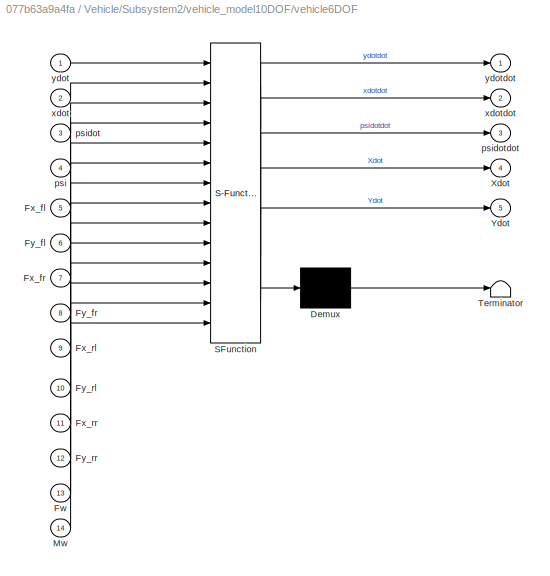
BLOCK [SubSystem] Vehicle/Subsystem2/vehicle_model10DOF/vehicle6DOF
  ErrorFcn = Stateflow.Translate.translate
  PermitHierarchicalResolution = ExplicitOnly
  Ports = [14, 5]
  SFBlockType = MATLAB Function
  TreatAsAtomicUnit = on
BLOCK [Demux] Vehicle/Subsystem2/vehicle_model10DOF/vehicle6DOF/ Demux 
  Outputs = 1
  Ports = [1, 1]
BLOCK [S-Function] Vehicle/Subsystem2/vehicle_model10DOF/vehicle6DOF/ SFunction 
  EnableBusSupport = on
  FunctionName = sf_sfun
  Parameters = I,a,b,c,m
  PortCounts = [14 6]
  Ports = [14, 6]
  SFcnIsStateOwnerBlock = off
  SFunctionDeploymentMode = off
  Tag = Stateflow S-Function 15
BLOCK [Terminator] Vehicle/Subsystem2/vehicle_model10DOF/vehicle6DOF/ Terminator 
BLOCK [Inport] Vehicle/Subsystem2/vehicle_model10DOF/vehicle6DOF/Fw
  Port = 13
BLOCK [Inport] Vehicle/Subsystem2/vehicle_model10DOF/vehicle6DOF/Fx_fl
  Port = 5
BLOCK [Inport] Vehicle/Subsystem2/vehicle_model10DOF/vehicle6DOF/Fx_fr
  Port = 7
BLOCK [Inport] Vehicle/Subsystem2/vehicle_model10DOF/vehicle6DOF/Fx_rl
  Port = 9
BLOCK [Inport] Vehicle/Subsystem2/vehicle_model10DOF/vehicle6DOF/Fx_rr
  Port = 11
BLOCK [Inport] Vehicle/Subsystem2/vehicle_model10DOF/vehicle6DOF/Fy_fl
  Port = 6
BLOCK [Inport] Vehicle/Subsystem2/vehicle_model10DOF/vehicle6DOF/Fy_fr
  Port = 8
BLOCK [Inport] Vehicle/Subsystem2/vehicle_model10DOF/vehicle6DOF/Fy_rl
  Port = 10
BLOCK [Inport] Vehicle/Subsystem2/vehicle_model10DOF/vehicle6DOF/Fy_rr
  Port = 12
BLOCK [Inport] Vehicle/Subsystem2/vehicle_model10DOF/vehicle6DOF/Mw
  Port = 14
BLOCK [Outport] Vehicle/Subsystem2/vehicle_model10DOF/vehicle6DOF/Xdot
  Port = 4
BLOCK [Outport] Vehicle/Subsystem2/vehicle_model10DOF/vehicle6DOF/Ydot
  Port = 5
BLOCK [Inport] Vehicle/Subsystem2/vehicle_model10DOF/vehicle6DOF/psi
  Port = 4
BLOCK [Inport] Vehicle/Subsystem2/vehicle_model10DOF/vehicle6DOF/psidot
  Port = 3
BLOCK [Outport] Vehicle/Subsystem2/vehicle_model10DOF/vehicle6DOF/psidotdot
  Port = 3
BLOCK [Inport] Vehicle/Subsystem2/vehicle_model10DOF/vehicle6DOF/xdot
  Port = 2
BLOCK [Outport] Vehicle/Subsystem2/vehicle_model10DOF/vehicle6DOF/xdotdot
  Port = 2
BLOCK [Inport] Vehicle/Subsystem2/vehicle_model10DOF/vehicle6DOF/ydot
BLOCK [Outport] Vehicle/Subsystem2/vehicle_model10DOF/vehicle6DOF/ydotdot
BLOCK [Outport] Vehicle/Subsystem2/vehicle_model10DOF/w_fl
  Port = 9
BLOCK [Outport] Vehicle/Subsystem2/vehicle_model10DOF/w_fr
  Port = 10
BLOCK [Outport] Vehicle/Subsystem2/vehicle_model10DOF/w_rl
  Port = 11
BLOCK [Outport] Vehicle/Subsystem2/vehicle_model10DOF/w_rr
  Port = 12
BLOCK [Outport] Vehicle/Subsystem2/vehicle_model10DOF/x_dot
BLOCK [Outport] Vehicle/Subsystem2/vehicle_model10DOF/x_dotdot
  Port = 13
BLOCK [Outport] Vehicle/Subsystem2/vehicle_model10DOF/y_dot
  Port = 2
BLOCK [Outport] Vehicle/Subsystem2/w
BLOCK [Outport] Vehicle/Subsystem2/x_dot
  Port = 2
BLOCK [Outport] Vehicle/Subsystem2/x_dotdot
  Port = 6
BLOCK [Inport] Vehicle/Tb
  Port = 2
BLOCK [Outport] Vehicle/X
  NameLocation = top
  Port = 3
BLOCK [Outport] Vehicle/X_dot
  NameLocation = top
  Port = 2
BLOCK [Outport] Vehicle/alpha
  Port = 7
BLOCK [Inport] Vehicle/delta
BLOCK [Outport] Vehicle/psi
  NameLocation = top
  Port = 4
BLOCK [Outport] Vehicle/w
  NameLocation = top
  Port = 5
BLOCK [Outport] Vehicle/x_dot
  NameLocation = top
BLOCK [Outport] Vehicle/x_dot_dot
  NameLocation = top
  Port = 6
BLOCK [Inport] Y_ref
  NameLocation = top
  Port = 4
BLOCK [SubSystem] internal MPC
  NameLocation = top
  Ports = [7, 2]
BLOCK [SubSystem] internal MPC/BrakingLogic
  NameLocation = top
  Ports = [3, 1]
BLOCK [Demux] internal MPC/BrakingLogic/Demux
  NameLocation = top
  Ports = [1, 4]
BLOCK [Inport] internal MPC/BrakingLogic/M
  Port = 2
BLOCK [SubSystem] internal MPC/BrakingLogic/MATLAB Function
  ErrorFcn = Stateflow.Translate.translate
  PermitHierarchicalResolution = ExplicitOnly
  Ports = [4, 4]
  SFBlockType = MATLAB Function
  TreatAsAtomicUnit = on
BLOCK [Demux] internal MPC/BrakingLogic/MATLAB Function/ Demux 
  Outputs = 1
  Ports = [1, 1]
BLOCK [S-Function] internal MPC/BrakingLogic/MATLAB Function/ SFunction 
  EnableBusSupport = on
  FunctionName = sf_sfun
  Parameters = a,b,c,r
  PortCounts = [4 5]
  Ports = [4, 5]
  SFcnIsStateOwnerBlock = off
  SFunctionDeploymentMode = off
  Tag = Stateflow S-Function 26
BLOCK [Terminator] internal MPC/BrakingLogic/MATLAB Function/ Terminator 
BLOCK [Inport] internal MPC/BrakingLogic/MATLAB Function/M
  Port = 4
BLOCK [Outport] internal MPC/BrakingLogic/MATLAB Function/Tbfl
BLOCK [Outport] internal MPC/BrakingLogic/MATLAB Function/Tbfr
  Port = 2
BLOCK [Outport] internal MPC/BrakingLogic/MATLAB Function/Tbrl
  Port = 3
BLOCK [Outport] internal MPC/BrakingLogic/MATLAB Function/Tbrr
  Port = 4
BLOCK [Inport] internal MPC/BrakingLogic/MATLAB Function/alpha_f
  Port = 2
BLOCK [Inport] internal MPC/BrakingLogic/MATLAB Function/alpha_r
  Port = 3
BLOCK [Inport] internal MPC/BrakingLogic/MATLAB Function/delta
BLOCK [SubSystem] internal MPC/BrakingLogic/MATLAB Function1
  ErrorFcn = Stateflow.Translate.translate
  NameLocation = top
  PermitHierarchicalResolution = ExplicitOnly
  Ports = [4, 2]
  SFBlockType = MATLAB Function
  TreatAsAtomicUnit = on
BLOCK [Demux] internal MPC/BrakingLogic/MATLAB Function1/ Demux 
  Outputs = 1
  Ports = [1, 1]
BLOCK [S-Function] internal MPC/BrakingLogic/MATLAB Function1/ SFunction 
  EnableBusSupport = on
  FunctionName = sf_sfun
  PortCounts = [4 3]
  Ports = [4, 3]
  SFcnIsStateOwnerBlock = off
  SFunctionDeploymentMode = off
  Tag = Stateflow S-Function 27
BLOCK [Terminator] internal MPC/BrakingLogic/MATLAB Function1/ Terminator 
BLOCK [Outport] internal MPC/BrakingLogic/MATLAB Function1/alpha_f
BLOCK [Inport] internal MPC/BrakingLogic/MATLAB Function1/alpha_fl
BLOCK [Inport] internal MPC/BrakingLogic/MATLAB Function1/alpha_fr
  Port = 2
BLOCK [Outport] internal MPC/BrakingLogic/MATLAB Function1/alpha_r
  Port = 2
BLOCK [Inport] internal MPC/BrakingLogic/MATLAB Function1/alpha_rl
  Port = 3
BLOCK [Inport] internal MPC/BrakingLogic/MATLAB Function1/alpha_rr
  Port = 4
BLOCK [Mux] internal MPC/BrakingLogic/Mux
  DisplayOption = bar
  Ports = [4, 1]
BLOCK [Outport] internal MPC/BrakingLogic/T
BLOCK [Inport] internal MPC/BrakingLogic/alpha
  Port = 3
BLOCK [Inport] internal MPC/BrakingLogic/delta
BLOCK [Constant] internal MPC/Constant
  Value = sel_ext
BLOCK [Constant] internal MPC/Constant1
  Value = sel_ext
BLOCK [MultiPortSwitch] internal MPC/Multiport Switch
  InputSameDT = off
  Inputs = 2
  Ports = [3, 1]
  SaturateOnIntegerOverflow = off
BLOCK [MultiPortSwitch] internal MPC/Multiport Switch1
  InputSameDT = off
  Inputs = 2
  Ports = [3, 1]
  SaturateOnIntegerOverflow = off
BLOCK [Outport] internal MPC/Tb
  NameLocation = top
BLOCK [Inport] internal MPC/X
  NameLocation = top
  Port = 4
BLOCK [Inport] internal MPC/X_dot
  NameLocation = top
  Port = 3
BLOCK [ZeroOrderHold] internal MPC/Zero-Order Hold
  NameLocation = top
  SampleTime = -1
BLOCK [ZeroOrderHold] internal MPC/Zero-Order Hold1
  NameLocation = top
  SampleTime = -1
BLOCK [Inport] internal MPC/alpha
  NameLocation = top
  Port = 7
BLOCK [Outport] internal MPC/delta
  NameLocation = top
  Port = 2
BLOCK [SubSystem] internal MPC/full internal MPC1
  NameLocation = top
  Ports = [6, 2]
BLOCK [Constant] internal MPC/full internal MPC1/Constant
  NameLocation = top
  Value = sel_int
BLOCK [Outport] internal MPC/full internal MPC1/Delta
  NameLocation = top
BLOCK [SubSystem] internal MPC/full internal MPC1/Subsystem
  NameLocation = top
  PortSchema = {"entries":[{"content":{"sides":[{"content":{"connectorIds":["In1","In2","In3","In4","In5","In6"]},"type":"ConnectorPlacement.EquallySpacedRectSide","uuid":"afc2eced-fac6-40c0-835b-934651f4342e"},{"content":{"connectorIds":["Out1","Out2"],"side":"RIGHT"},"type":"ConnectorPlacement.EquallySpacedRectSide","uuid":"0398ea9e-d615-4012-a81d-0e7d9c0762e8"},{"content":{"connectorIds":["In7"],"side":"TOP"}...<+282ch>
  Ports = [7, 2]
BLOCK [Outport] internal MPC/full internal MPC1/Subsystem/Delta
  NameLocation = top
BLOCK [Outport] internal MPC/full internal MPC1/Subsystem/M
  NameLocation = top
  Port = 2
BLOCK [SubSystem] internal MPC/full internal MPC1/Subsystem/MATLAB Function
  ErrorFcn = Stateflow.Translate.translate
  NameLocation = top
  PermitHierarchicalResolution = ExplicitOnly
  Ports = [1, 2]
  SFBlockType = MATLAB Function
  TreatAsAtomicUnit = on
BLOCK [Demux] internal MPC/full internal MPC1/Subsystem/MATLAB Function/ Demux 
  Outputs = 1
  Ports = [1, 1]
BLOCK [S-Function] internal MPC/full internal MPC1/Subsystem/MATLAB Function/ SFunction 
  EnableBusSupport = on
  FunctionName = sf_sfun
  PortCounts = [1 3]
  Ports = [1, 3]
  SFcnIsStateOwnerBlock = off
  SFunctionDeploymentMode = off
  Tag = Stateflow S-Function 29
BLOCK [Terminator] internal MPC/full internal MPC1/Subsystem/MATLAB Function/ Terminator 
BLOCK [Outport] internal MPC/full internal MPC1/Subsystem/MATLAB Function/Delta
  Port = 2
BLOCK [Outport] internal MPC/full internal MPC1/Subsystem/MATLAB Function/M
BLOCK [Inport] internal MPC/full internal MPC1/Subsystem/MATLAB Function/Q
BLOCK [Inport] internal MPC/full internal MPC1/Subsystem/Q
  NameLocation = top
  Port = 7
BLOCK [Inport] internal MPC/full internal MPC1/Subsystem/X
  NameLocation = top
  Port = 3
BLOCK [Inport] internal MPC/full internal MPC1/Subsystem/X_dot
  NameLocation = top
  Port = 2
BLOCK [Inport] internal MPC/full internal MPC1/Subsystem/psi
  NameLocation = top
  Port = 4
BLOCK [Inport] internal MPC/full internal MPC1/Subsystem/reference
  NameLocation = top
  Port = 6
BLOCK [Inport] internal MPC/full internal MPC1/Subsystem/w
  NameLocation = top
  Port = 5
BLOCK [Inport] internal MPC/full internal MPC1/Subsystem/x_dot
  NameLocation = top
BLOCK [Outport] internal MPC/full internal MPC1/T
  NameLocation = top
  Port = 2
BLOCK [Inport] internal MPC/full internal MPC1/X
  NameLocation = top
  Port = 3
BLOCK [Inport] internal MPC/full internal MPC1/X_dot
  NameLocation = top
  Port = 2
BLOCK [Inport] internal MPC/full internal MPC1/psi
  NameLocation = top
  Port = 4
BLOCK [Inport] internal MPC/full internal MPC1/reference
  NameLocation = top
  Port = 6
BLOCK [Inport] internal MPC/full internal MPC1/w
  NameLocation = top
  Port = 5
BLOCK [Inport] internal MPC/full internal MPC1/x_dot
  NameLocation = top
BLOCK [Inport] internal MPC/psi
  NameLocation = top
  Port = 5
BLOCK [Inport] internal MPC/reference
BLOCK [SubSystem] internal MPC/simplified internal MPC
  NameLocation = top
  Ports = [6, 2]
BLOCK [Constant] internal MPC/simplified internal MPC/Constant
  NameLocation = top
  Value = sel_int
BLOCK [Outport] internal MPC/simplified internal MPC/Delta
  NameLocation = top
BLOCK [Outport] internal MPC/simplified internal MPC/M
  NameLocation = top
  Port = 2
BLOCK [SubSystem] internal MPC/simplified internal MPC/Subsystem
  NameLocation = top
  PortSchema = {"entries":[{"content":{"sides":[{"content":{"connectorIds":["In1","In2","In3","In4","In5","In6"]},"type":"ConnectorPlacement.EquallySpacedRectSide","uuid":"afc2eced-fac6-40c0-835b-934651f4342e"},{"content":{"connectorIds":["Out1","Out2"],"side":"RIGHT"},"type":"ConnectorPlacement.EquallySpacedRectSide","uuid":"0398ea9e-d615-4012-a81d-0e7d9c0762e8"},{"content":{"connectorIds":["In7"],"side":"TOP"}...<+282ch>
  Ports = [7, 2]
BLOCK [Outport] internal MPC/simplified internal MPC/Subsystem/Delta
  NameLocation = top
BLOCK [Outport] internal MPC/simplified internal MPC/Subsystem/M
  NameLocation = top
  Port = 2
BLOCK [SubSystem] internal MPC/simplified internal MPC/Subsystem/MATLAB Function
  ErrorFcn = Stateflow.Translate.translate
  NameLocation = top
  PermitHierarchicalResolution = ExplicitOnly
  Ports = [1, 2]
  SFBlockType = MATLAB Function
  TreatAsAtomicUnit = on
BLOCK [Demux] internal MPC/simplified internal MPC/Subsystem/MATLAB Function/ Demux 
  Outputs = 1
  Ports = [1, 1]
BLOCK [S-Function] internal MPC/simplified internal MPC/Subsystem/MATLAB Function/ SFunction 
  EnableBusSupport = on
  FunctionName = sf_sfun
  PortCounts = [1 3]
  Ports = [1, 3]
  SFcnIsStateOwnerBlock = off
  SFunctionDeploymentMode = off
  Tag = Stateflow S-Function 28
BLOCK [Terminator] internal MPC/simplified internal MPC/Subsystem/MATLAB Function/ Terminator 
BLOCK [Outport] internal MPC/simplified internal MPC/Subsystem/MATLAB Function/Delta
  Port = 2
BLOCK [Outport] internal MPC/simplified internal MPC/Subsystem/MATLAB Function/M
BLOCK [Inport] internal MPC/simplified internal MPC/Subsystem/MATLAB Function/Q
BLOCK [Inport] internal MPC/simplified internal MPC/Subsystem/Q
  NameLocation = top
  Port = 7
BLOCK [Inport] internal MPC/simplified internal MPC/Subsystem/X
  NameLocation = top
  Port = 3
BLOCK [Inport] internal MPC/simplified internal MPC/Subsystem/X_dot
  NameLocation = top
  Port = 2
BLOCK [Inport] internal MPC/simplified internal MPC/Subsystem/psi
  NameLocation = top
  Port = 4
BLOCK [Inport] internal MPC/simplified internal MPC/Subsystem/reference
  NameLocation = top
  Port = 6
BLOCK [Inport] internal MPC/simplified internal MPC/Subsystem/w
  NameLocation = top
  Port = 5
BLOCK [Inport] internal MPC/simplified internal MPC/Subsystem/x_dot
  NameLocation = top
BLOCK [Inport] internal MPC/simplified internal MPC/X
  NameLocation = top
  Port = 3
BLOCK [Inport] internal MPC/simplified internal MPC/X_dot
  NameLocation = top
  Port = 2
BLOCK [Inport] internal MPC/simplified internal MPC/psi
  NameLocation = top
  Port = 4
BLOCK [Inport] internal MPC/simplified internal MPC/reference
  NameLocation = top
  Port = 6
BLOCK [Inport] internal MPC/simplified internal MPC/w
  NameLocation = top
  Port = 5
BLOCK [Inport] internal MPC/simplified internal MPC/x_dot
  NameLocation = top
BLOCK [Inport] internal MPC/w
  NameLocation = top
  Port = 6
BLOCK [Inport] internal MPC/x_dot
  NameLocation = top
  Port = 2
BLOCK [Inport] psi_dot_ref
  NameLocation = top
  Port = 3
BLOCK [Inport] psi_ref
  NameLocation = top
  Port = 2
BLOCK [Inport] vw
  Port = 5
BLOCK [SubSystem] wind
  ErrorFcn = Stateflow.Translate.translate
  PermitHierarchicalResolution = ExplicitOnly
  Ports = [1, 2]
  SFBlockType = MATLAB Function
  TreatAsAtomicUnit = on
BLOCK [Demux] wind/ Demux 
  Outputs = 1
  Ports = [1, 1]
BLOCK [S-Function] wind/ SFunction 
  EnableBusSupport = on
  FunctionName = sf_sfun
  Parameters = a,b
  PortCounts = [1 3]
  Ports = [1, 3]
  SFcnIsStateOwnerBlock = off
  SFunctionDeploymentMode = off
  Tag = Stateflow S-Function 16
BLOCK [Terminator] wind/ Terminator 
BLOCK [Outport] wind/Fw
BLOCK [Outport] wind/Mw
  Port = 2
BLOCK [Inport] wind/vw
BLOCK [Inport] x_dot_ref
  NameLocation = top
LINE Trajectory replaner/Constant:1 -> Trajectory replaner/Multiport Switch:1
LINE Trajectory replaner/Multiport Switch:1 -> Trajectory replaner/refernece:1
NET Trajectory replaner/Mux:1 -> Trajectory replaner/Multiport Switch:3, Trajectory replaner/Trajectory MPC:1
LINE Trajectory replaner/Trajectory MPC/MATLAB Function:1 -> Trajectory replaner/Trajectory MPC/ref_new:1
LINE Trajectory replaner/Trajectory MPC/ref_old:1 -> Trajectory replaner/Trajectory MPC/MATLAB Function:1
LINE Trajectory replaner/Trajectory MPC:1 -> Trajectory replaner/Multiport Switch:2
LINE Trajectory replaner/X:1 -> Trajectory replaner/Trajectory MPC:3
LINE Trajectory replaner/X_dot:1 -> Trajectory replaner/Trajectory MPC:4
LINE Trajectory replaner/Y_ref:1 -> Trajectory replaner/Mux:4
LINE Trajectory replaner/alpha:1 -> Trajectory replaner/Trajectory MPC:7
LINE Trajectory replaner/psi:1 -> Trajectory replaner/Trajectory MPC:5
LINE Trajectory replaner/psi_dot_ref:1 -> Trajectory replaner/Mux:3
LINE Trajectory replaner/psi_ref:1 -> Trajectory replaner/Mux:2
LINE Trajectory replaner/w:1 -> Trajectory replaner/Trajectory MPC:6
LINE Trajectory replaner/x_dot:1 -> Trajectory replaner/Trajectory MPC:2
LINE Trajectory replaner/x_dot_ref:1 -> Trajectory replaner/Mux:1
LINE Trajectory replaner:1 -> internal MPC:1
LINE Vehicle/Fw:1 -> Vehicle/Subsystem2:3
LINE Vehicle/Mw:1 -> Vehicle/Subsystem2:4
LINE Vehicle/Subsystem/Demux1:1 -> Vehicle/Subsystem/Subsystem4:5
LINE Vehicle/Subsystem/Demux1:2 -> Vehicle/Subsystem/Subsystem4:6
LINE Vehicle/Subsystem/Demux1:3 -> Vehicle/Subsystem/Subsystem4:7
LINE Vehicle/Subsystem/Demux1:4 -> Vehicle/Subsystem/Subsystem4:8
LINE Vehicle/Subsystem/Demux:1 -> Vehicle/Subsystem/Subsystem4:1
LINE Vehicle/Subsystem/Demux:2 -> Vehicle/Subsystem/Subsystem4:2
LINE Vehicle/Subsystem/Demux:3 -> Vehicle/Subsystem/Subsystem4:3
LINE Vehicle/Subsystem/Demux:4 -> Vehicle/Subsystem/Subsystem4:4
LINE Vehicle/Subsystem/Mux:1 -> Vehicle/Subsystem/Output:1
LINE Vehicle/Subsystem/Subsystem4/Input1:1 -> Vehicle/Subsystem/Subsystem4/Tyre Model FL:2
LINE Vehicle/Subsystem/Subsystem4/Input2:1 -> Vehicle/Subsystem/Subsystem4/Tyre Model FR:1
LINE Vehicle/Subsystem/Subsystem4/Input3:1 -> Vehicle/Subsystem/Subsystem4/Tyre Model FR:2
LINE Vehicle/Subsystem/Subsystem4/Input4:1 -> Vehicle/Subsystem/Subsystem4/Tyre Model RL:1
LINE Vehicle/Subsystem/Subsystem4/Input5:1 -> Vehicle/Subsystem/Subsystem4/Tyre Model RL:2
LINE Vehicle/Subsystem/Subsystem4/Input6:1 -> Vehicle/Subsystem/Subsystem4/Tyre Model RR:1
LINE Vehicle/Subsystem/Subsystem4/Input7:1 -> Vehicle/Subsystem/Subsystem4/Tyre Model RR:2
LINE Vehicle/Subsystem/Subsystem4/Input:1 -> Vehicle/Subsystem/Subsystem4/Tyre Model FL:1
LINE Vehicle/Subsystem/Subsystem4/Tyre Model FL/Combined force:1 -> Vehicle/Subsystem/Subsystem4/Tyre Model FL/Out1:1
LINE Vehicle/Subsystem/Subsystem4/Tyre Model FL/Combined force:2 -> Vehicle/Subsystem/Subsystem4/Tyre Model FL/Fxfl:1
LINE Vehicle/Subsystem/Subsystem4/Tyre Model FL/Combined force:3 -> Vehicle/Subsystem/Subsystem4/Tyre Model FL/Fyfl:1
LINE Vehicle/Subsystem/Subsystem4/Tyre Model FL/Constant5:1 -> Vehicle/Subsystem/Subsystem4/Tyre Model FL/side force:3
LINE Vehicle/Subsystem/Subsystem4/Tyre Model FL/Constant6:1 -> Vehicle/Subsystem/Subsystem4/Tyre Model FL/side force:2
NET Vehicle/Subsystem/Subsystem4/Tyre Model FL/Input1:1 -> Vehicle/Subsystem/Subsystem4/Tyre Model FL/Combined force:4, Vehicle/Subsystem/Subsystem4/Tyre Model FL/side force:1
NET Vehicle/Subsystem/Subsystem4/Tyre Model FL/Input:1 -> Vehicle/Subsystem/Subsystem4/Tyre Model FL/Combined force:2, Vehicle/Subsystem/Subsystem4/Tyre Model FL/brake force :1
LINE Vehicle/Subsystem/Subsystem4/Tyre Model FL/brake force :1 -> Vehicle/Subsystem/Subsystem4/Tyre Model FL/Combined force:1
LINE Vehicle/Subsystem/Subsystem4/Tyre Model FL/side force:1 -> Vehicle/Subsystem/Subsystem4/Tyre Model FL/Combined force:3
LINE Vehicle/Subsystem/Subsystem4/Tyre Model FL:1 -> Vehicle/Subsystem/Subsystem4/Terminator:1
LINE Vehicle/Subsystem/Subsystem4/Tyre Model FL:2 -> Vehicle/Subsystem/Subsystem4/Fxfl:1
LINE Vehicle/Subsystem/Subsystem4/Tyre Model FL:3 -> Vehicle/Subsystem/Subsystem4/Fyfl:1
LINE Vehicle/Subsystem/Subsystem4/Tyre Model FR/Combined force:1 -> Vehicle/Subsystem/Subsystem4/Tyre Model FR/Out1:1
LINE Vehicle/Subsystem/Subsystem4/Tyre Model FR/Combined force:2 -> Vehicle/Subsystem/Subsystem4/Tyre Model FR/Fxfl:1
LINE Vehicle/Subsystem/Subsystem4/Tyre Model FR/Combined force:3 -> Vehicle/Subsystem/Subsystem4/Tyre Model FR/Fyfl:1
LINE Vehicle/Subsystem/Subsystem4/Tyre Model FR/Constant5:1 -> Vehicle/Subsystem/Subsystem4/Tyre Model FR/side force:3
LINE Vehicle/Subsystem/Subsystem4/Tyre Model FR/Constant6:1 -> Vehicle/Subsystem/Subsystem4/Tyre Model FR/side force:2
NET Vehicle/Subsystem/Subsystem4/Tyre Model FR/Input1:1 -> Vehicle/Subsystem/Subsystem4/Tyre Model FR/Combined force:4, Vehicle/Subsystem/Subsystem4/Tyre Model FR/side force:1
NET Vehicle/Subsystem/Subsystem4/Tyre Model FR/Input:1 -> Vehicle/Subsystem/Subsystem4/Tyre Model FR/Combined force:2, Vehicle/Subsystem/Subsystem4/Tyre Model FR/brake force :1
LINE Vehicle/Subsystem/Subsystem4/Tyre Model FR/brake force :1 -> Vehicle/Subsystem/Subsystem4/Tyre Model FR/Combined force:1
LINE Vehicle/Subsystem/Subsystem4/Tyre Model FR/side force:1 -> Vehicle/Subsystem/Subsystem4/Tyre Model FR/Combined force:3
LINE Vehicle/Subsystem/Subsystem4/Tyre Model FR:1 -> Vehicle/Subsystem/Subsystem4/Terminator1:1
LINE Vehicle/Subsystem/Subsystem4/Tyre Model FR:2 -> Vehicle/Subsystem/Subsystem4/Fxfl1:1
LINE Vehicle/Subsystem/Subsystem4/Tyre Model FR:3 -> Vehicle/Subsystem/Subsystem4/Fyfl1:1
LINE Vehicle/Subsystem/Subsystem4/Tyre Model RL/Combined force:1 -> Vehicle/Subsystem/Subsystem4/Tyre Model RL/Out1:1
LINE Vehicle/Subsystem/Subsystem4/Tyre Model RL/Combined force:2 -> Vehicle/Subsystem/Subsystem4/Tyre Model RL/Fxfl:1
LINE Vehicle/Subsystem/Subsystem4/Tyre Model RL/Combined force:3 -> Vehicle/Subsystem/Subsystem4/Tyre Model RL/Fyfl:1
LINE Vehicle/Subsystem/Subsystem4/Tyre Model RL/Constant5:1 -> Vehicle/Subsystem/Subsystem4/Tyre Model RL/side force:3
LINE Vehicle/Subsystem/Subsystem4/Tyre Model RL/Constant6:1 -> Vehicle/Subsystem/Subsystem4/Tyre Model RL/side force:2
NET Vehicle/Subsystem/Subsystem4/Tyre Model RL/Input1:1 -> Vehicle/Subsystem/Subsystem4/Tyre Model RL/Combined force:4, Vehicle/Subsystem/Subsystem4/Tyre Model RL/side force:1
NET Vehicle/Subsystem/Subsystem4/Tyre Model RL/Input:1 -> Vehicle/Subsystem/Subsystem4/Tyre Model RL/Combined force:2, Vehicle/Subsystem/Subsystem4/Tyre Model RL/brake force :1
LINE Vehicle/Subsystem/Subsystem4/Tyre Model RL/brake force :1 -> Vehicle/Subsystem/Subsystem4/Tyre Model RL/Combined force:1
LINE Vehicle/Subsystem/Subsystem4/Tyre Model RL/side force:1 -> Vehicle/Subsystem/Subsystem4/Tyre Model RL/Combined force:3
LINE Vehicle/Subsystem/Subsystem4/Tyre Model RL:1 -> Vehicle/Subsystem/Subsystem4/Terminator2:1
LINE Vehicle/Subsystem/Subsystem4/Tyre Model RL:2 -> Vehicle/Subsystem/Subsystem4/Fxfl2:1
LINE Vehicle/Subsystem/Subsystem4/Tyre Model RL:3 -> Vehicle/Subsystem/Subsystem4/Fyfl2:1
LINE Vehicle/Subsystem/Subsystem4/Tyre Model RR/Combined force:1 -> Vehicle/Subsystem/Subsystem4/Tyre Model RR/Out1:1
LINE Vehicle/Subsystem/Subsystem4/Tyre Model RR/Combined force:2 -> Vehicle/Subsystem/Subsystem4/Tyre Model RR/Fxfl:1
LINE Vehicle/Subsystem/Subsystem4/Tyre Model RR/Combined force:3 -> Vehicle/Subsystem/Subsystem4/Tyre Model RR/Fyfl:1
LINE Vehicle/Subsystem/Subsystem4/Tyre Model RR/Constant5:1 -> Vehicle/Subsystem/Subsystem4/Tyre Model RR/side force:3
LINE Vehicle/Subsystem/Subsystem4/Tyre Model RR/Constant6:1 -> Vehicle/Subsystem/Subsystem4/Tyre Model RR/side force:2
NET Vehicle/Subsystem/Subsystem4/Tyre Model RR/Input1:1 -> Vehicle/Subsystem/Subsystem4/Tyre Model RR/Combined force:4, Vehicle/Subsystem/Subsystem4/Tyre Model RR/side force:1
NET Vehicle/Subsystem/Subsystem4/Tyre Model RR/Input:1 -> Vehicle/Subsystem/Subsystem4/Tyre Model RR/Combined force:2, Vehicle/Subsystem/Subsystem4/Tyre Model RR/brake force :1
LINE Vehicle/Subsystem/Subsystem4/Tyre Model RR/brake force :1 -> Vehicle/Subsystem/Subsystem4/Tyre Model RR/Combined force:1
LINE Vehicle/Subsystem/Subsystem4/Tyre Model RR/side force:1 -> Vehicle/Subsystem/Subsystem4/Tyre Model RR/Combined force:3
LINE Vehicle/Subsystem/Subsystem4/Tyre Model RR:1 -> Vehicle/Subsystem/Subsystem4/Terminator3:1
LINE Vehicle/Subsystem/Subsystem4/Tyre Model RR:2 -> Vehicle/Subsystem/Subsystem4/Fxfl3:1
LINE Vehicle/Subsystem/Subsystem4/Tyre Model RR:3 -> Vehicle/Subsystem/Subsystem4/Fyfl3:1
LINE Vehicle/Subsystem/Subsystem4:1 -> Vehicle/Subsystem/Mux:1
LINE Vehicle/Subsystem/Subsystem4:2 -> Vehicle/Subsystem/Mux:2
LINE Vehicle/Subsystem/Subsystem4:3 -> Vehicle/Subsystem/Mux:3
LINE Vehicle/Subsystem/Subsystem4:4 -> Vehicle/Subsystem/Mux:4
LINE Vehicle/Subsystem/Subsystem4:5 -> Vehicle/Subsystem/Mux:5
LINE Vehicle/Subsystem/Subsystem4:6 -> Vehicle/Subsystem/Mux:6
LINE Vehicle/Subsystem/Subsystem4:7 -> Vehicle/Subsystem/Mux:7
LINE Vehicle/Subsystem/Subsystem4:8 -> Vehicle/Subsystem/Mux:8
LINE Vehicle/Subsystem/alpha:1 -> Vehicle/Subsystem/Demux1:1
LINE Vehicle/Subsystem/s:1 -> Vehicle/Subsystem/Demux:1
LINE Vehicle/Subsystem1/Demux2:1 -> Vehicle/Subsystem1/slip ratio [%]:1
LINE Vehicle/Subsystem1/Demux2:2 -> Vehicle/Subsystem1/slip ratio [%]:4
LINE Vehicle/Subsystem1/Demux2:3 -> Vehicle/Subsystem1/slip ratio [%]:7
LINE Vehicle/Subsystem1/Demux2:4 -> Vehicle/Subsystem1/slip ratio [%]:10
LINE Vehicle/Subsystem1/Demux3:1 -> Vehicle/Subsystem1/slip ratio [%]:3
LINE Vehicle/Subsystem1/Demux3:2 -> Vehicle/Subsystem1/slip ratio [%]:6
LINE Vehicle/Subsystem1/Demux3:3 -> Vehicle/Subsystem1/slip ratio [%]:9
LINE Vehicle/Subsystem1/Demux3:4 -> Vehicle/Subsystem1/slip ratio [%]:12
LINE Vehicle/Subsystem1/Demux4:1 -> Vehicle/Subsystem1/MATLAB Function1:4
LINE Vehicle/Subsystem1/Demux4:2 -> Vehicle/Subsystem1/MATLAB Function1:5
LINE Vehicle/Subsystem1/Demux5:1 -> Vehicle/Subsystem1/MATLAB Function1:1
LINE Vehicle/Subsystem1/Demux5:2 -> Vehicle/Subsystem1/MATLAB Function1:2
LINE Vehicle/Subsystem1/Demux5:3 -> Vehicle/Subsystem1/MATLAB Function1:3
NET Vehicle/Subsystem1/MATLAB Function1:1 -> Vehicle/Subsystem1/slip angle [deg]:1, Vehicle/Subsystem1/slip ratio [%]:2
LINE Vehicle/Subsystem1/MATLAB Function1:2 -> Vehicle/Subsystem1/slip angle [deg]:2
NET Vehicle/Subsystem1/MATLAB Function1:3 -> Vehicle/Subsystem1/slip angle [deg]:3, Vehicle/Subsystem1/slip ratio [%]:5
LINE Vehicle/Subsystem1/MATLAB Function1:4 -> Vehicle/Subsystem1/slip angle [deg]:4
NET Vehicle/Subsystem1/MATLAB Function1:5 -> Vehicle/Subsystem1/slip angle [deg]:5, Vehicle/Subsystem1/slip ratio [%]:8
LINE Vehicle/Subsystem1/MATLAB Function1:6 -> Vehicle/Subsystem1/slip angle [deg]:6
NET Vehicle/Subsystem1/MATLAB Function1:7 -> Vehicle/Subsystem1/slip angle [deg]:7, Vehicle/Subsystem1/slip ratio [%]:11
LINE Vehicle/Subsystem1/MATLAB Function1:8 -> Vehicle/Subsystem1/slip angle [deg]:8
LINE Vehicle/Subsystem1/Mux1:1 -> Vehicle/Subsystem1/alpha:1
LINE Vehicle/Subsystem1/Mux:1 -> Vehicle/Subsystem1/s:1
LINE Vehicle/Subsystem1/Tb:1 -> Vehicle/Subsystem1/Demux2:1
LINE Vehicle/Subsystem1/delta:1 -> Vehicle/Subsystem1/Demux4:1
LINE Vehicle/Subsystem1/slip angle [deg]:1 -> Vehicle/Subsystem1/Mux1:1
LINE Vehicle/Subsystem1/slip angle [deg]:2 -> Vehicle/Subsystem1/Mux1:2
LINE Vehicle/Subsystem1/slip angle [deg]:3 -> Vehicle/Subsystem1/Mux1:3
LINE Vehicle/Subsystem1/slip angle [deg]:4 -> Vehicle/Subsystem1/Mux1:4
LINE Vehicle/Subsystem1/slip ratio [%]/MATLAB Function2:1 -> Vehicle/Subsystem1/slip ratio [%]/s_fr:1
LINE Vehicle/Subsystem1/slip ratio [%]/MATLAB Function3:1 -> Vehicle/Subsystem1/slip ratio [%]/s_rl:1
LINE Vehicle/Subsystem1/slip ratio [%]/MATLAB Function4:1 -> Vehicle/Subsystem1/slip ratio [%]/s_rr:1
LINE Vehicle/Subsystem1/slip ratio [%]/MATLAB Function:1 -> Vehicle/Subsystem1/slip ratio [%]/s_fl:1
LINE Vehicle/Subsystem1/slip ratio [%]/Tb_fl:1 -> Vehicle/Subsystem1/slip ratio [%]/MATLAB Function:1
LINE Vehicle/Subsystem1/slip ratio [%]/Tb_fr:1 -> Vehicle/Subsystem1/slip ratio [%]/MATLAB Function2:1
LINE Vehicle/Subsystem1/slip ratio [%]/Tb_rl:1 -> Vehicle/Subsystem1/slip ratio [%]/MATLAB Function3:1
LINE Vehicle/Subsystem1/slip ratio [%]/Tb_rr:1 -> Vehicle/Subsystem1/slip ratio [%]/MATLAB Function4:1
LINE Vehicle/Subsystem1/slip ratio [%]/vl_fl:1 -> Vehicle/Subsystem1/slip ratio [%]/MATLAB Function:2
LINE Vehicle/Subsystem1/slip ratio [%]/vl_fr:1 -> Vehicle/Subsystem1/slip ratio [%]/MATLAB Function2:2
LINE Vehicle/Subsystem1/slip ratio [%]/vl_rl:1 -> Vehicle/Subsystem1/slip ratio [%]/MATLAB Function3:2
LINE Vehicle/Subsystem1/slip ratio [%]/vl_rr:1 -> Vehicle/Subsystem1/slip ratio [%]/MATLAB Function4:2
LINE Vehicle/Subsystem1/slip ratio [%]/w_fl:1 -> Vehicle/Subsystem1/slip ratio [%]/MATLAB Function:3
LINE Vehicle/Subsystem1/slip ratio [%]/w_fr:1 -> Vehicle/Subsystem1/slip ratio [%]/MATLAB Function2:3
LINE Vehicle/Subsystem1/slip ratio [%]/w_rl:1 -> Vehicle/Subsystem1/slip ratio [%]/MATLAB Function3:3
LINE Vehicle/Subsystem1/slip ratio [%]/w_rr:1 -> Vehicle/Subsystem1/slip ratio [%]/MATLAB Function4:3
LINE Vehicle/Subsystem1/slip ratio [%]:1 -> Vehicle/Subsystem1/Mux:1
LINE Vehicle/Subsystem1/slip ratio [%]:2 -> Vehicle/Subsystem1/Mux:2
LINE Vehicle/Subsystem1/slip ratio [%]:3 -> Vehicle/Subsystem1/Mux:3
LINE Vehicle/Subsystem1/slip ratio [%]:4 -> Vehicle/Subsystem1/Mux:4
LINE Vehicle/Subsystem1/w:1 -> Vehicle/Subsystem1/Demux3:1
LINE Vehicle/Subsystem1/x_y_psi_dot:1 -> Vehicle/Subsystem1/Demux5:1
NET Vehicle/Subsystem1:1 -> Vehicle/Subsystem:2, Vehicle/alpha:1
LINE Vehicle/Subsystem1:2 -> Vehicle/Subsystem:1
LINE Vehicle/Subsystem2/Demux1:1 -> Vehicle/Subsystem2/vehicle_model10DOF:1
LINE Vehicle/Subsystem2/Demux1:2 -> Vehicle/Subsystem2/vehicle_model10DOF:2
LINE Vehicle/Subsystem2/Demux1:3 -> Vehicle/Subsystem2/vehicle_model10DOF:3
LINE Vehicle/Subsystem2/Demux1:4 -> Vehicle/Subsystem2/vehicle_model10DOF:4
LINE Vehicle/Subsystem2/Demux1:5 -> Vehicle/Subsystem2/vehicle_model10DOF:5
LINE Vehicle/Subsystem2/Demux1:6 -> Vehicle/Subsystem2/vehicle_model10DOF:6
LINE Vehicle/Subsystem2/Demux1:7 -> Vehicle/Subsystem2/vehicle_model10DOF:7
LINE Vehicle/Subsystem2/Demux1:8 -> Vehicle/Subsystem2/vehicle_model10DOF:8
LINE Vehicle/Subsystem2/Demux2:1 -> Vehicle/Subsystem2/vehicle_model10DOF:15
LINE Vehicle/Subsystem2/Demux2:2 -> Vehicle/Subsystem2/vehicle_model10DOF:16
LINE Vehicle/Subsystem2/Demux:1 -> Vehicle/Subsystem2/vehicle_model10DOF:9
LINE Vehicle/Subsystem2/Demux:2 -> Vehicle/Subsystem2/vehicle_model10DOF:10
LINE Vehicle/Subsystem2/Demux:3 -> Vehicle/Subsystem2/vehicle_model10DOF:11
LINE Vehicle/Subsystem2/Demux:4 -> Vehicle/Subsystem2/vehicle_model10DOF:12
LINE Vehicle/Subsystem2/F_tyre:1 -> Vehicle/Subsystem2/Demux1:1
LINE Vehicle/Subsystem2/Fw:1 -> Vehicle/Subsystem2/vehicle_model10DOF:13
LINE Vehicle/Subsystem2/Mux1:1 -> Vehicle/Subsystem2/X:1
LINE Vehicle/Subsystem2/Mux2:1 -> Vehicle/Subsystem2/X_dot:1
LINE Vehicle/Subsystem2/Mux3:1 -> Vehicle/Subsystem2/x_dot:1
LINE Vehicle/Subsystem2/Mux:1 -> Vehicle/Subsystem2/w:1
LINE Vehicle/Subsystem2/Mw:1 -> Vehicle/Subsystem2/vehicle_model10DOF:14
LINE Vehicle/Subsystem2/Tb:1 -> Vehicle/Subsystem2/Demux:1
LINE Vehicle/Subsystem2/delta:1 -> Vehicle/Subsystem2/Demux2:1
LINE Vehicle/Subsystem2/vehicle_model10DOF/Fc_fl:1 -> Vehicle/Subsystem2/vehicle_model10DOF/Subsystem:2
LINE Vehicle/Subsystem2/vehicle_model10DOF/Fc_fr:1 -> Vehicle/Subsystem2/vehicle_model10DOF/Subsystem:4
LINE Vehicle/Subsystem2/vehicle_model10DOF/Fc_rl:1 -> Vehicle/Subsystem2/vehicle_model10DOF/Subsystem:6
LINE Vehicle/Subsystem2/vehicle_model10DOF/Fc_rr:1 -> Vehicle/Subsystem2/vehicle_model10DOF/Subsystem:8
NET Vehicle/Subsystem2/vehicle_model10DOF/Fl_fl:1 -> Vehicle/Subsystem2/vehicle_model10DOF/Subsystem:1, Vehicle/Subsystem2/vehicle_model10DOF/Wheels:1
NET Vehicle/Subsystem2/vehicle_model10DOF/Fl_fr:1 -> Vehicle/Subsystem2/vehicle_model10DOF/Subsystem:3, Vehicle/Subsystem2/vehicle_model10DOF/Wheels:2
NET Vehicle/Subsystem2/vehicle_model10DOF/Fl_rl:1 -> Vehicle/Subsystem2/vehicle_model10DOF/Subsystem:5, Vehicle/Subsystem2/vehicle_model10DOF/Wheels:3
NET Vehicle/Subsystem2/vehicle_model10DOF/Fl_rr:1 -> Vehicle/Subsystem2/vehicle_model10DOF/Subsystem:7, Vehicle/Subsystem2/vehicle_model10DOF/Wheels:4
LINE Vehicle/Subsystem2/vehicle_model10DOF/Fw:1 -> Vehicle/Subsystem2/vehicle_model10DOF/vehicle6DOF:13
NET Vehicle/Subsystem2/vehicle_model10DOF/Integrator1:1 -> Vehicle/Subsystem2/vehicle_model10DOF/vehicle6DOF:2, Vehicle/Subsystem2/vehicle_model10DOF/x_dot:1
NET Vehicle/Subsystem2/vehicle_model10DOF/Integrator2:1 -> Vehicle/Subsystem2/vehicle_model10DOF/Integrator3:1, Vehicle/Subsystem2/vehicle_model10DOF/psi_dot:1, Vehicle/Subsystem2/vehicle_model10DOF/vehicle6DOF:3
NET Vehicle/Subsystem2/vehicle_model10DOF/Integrator3:1 -> Vehicle/Subsystem2/vehicle_model10DOF/psi:1, Vehicle/Subsystem2/vehicle_model10DOF/vehicle6DOF:4
LINE Vehicle/Subsystem2/vehicle_model10DOF/Integrator4:1 -> Vehicle/Subsystem2/vehicle_model10DOF/X:1
LINE Vehicle/Subsystem2/vehicle_model10DOF/Integrator5:1 -> Vehicle/Subsystem2/vehicle_model10DOF/Y:1
NET Vehicle/Subsystem2/vehicle_model10DOF/Integrator6:1 -> Vehicle/Subsystem2/vehicle_model10DOF/Wheels:9, Vehicle/Subsystem2/vehicle_model10DOF/w_fl:1
NET Vehicle/Subsystem2/vehicle_model10DOF/Integrator7:1 -> Vehicle/Subsystem2/vehicle_model10DOF/Wheels:10, Vehicle/Subsystem2/vehicle_model10DOF/w_fr:1
NET Vehicle/Subsystem2/vehicle_model10DOF/Integrator8:1 -> Vehicle/Subsystem2/vehicle_model10DOF/Wheels:11, Vehicle/Subsystem2/vehicle_model10DOF/w_rl:1
NET Vehicle/Subsystem2/vehicle_model10DOF/Integrator9:1 -> Vehicle/Subsystem2/vehicle_model10DOF/Wheels:12, Vehicle/Subsystem2/vehicle_model10DOF/w_rr:1
NET Vehicle/Subsystem2/vehicle_model10DOF/Integrator:1 -> Vehicle/Subsystem2/vehicle_model10DOF/vehicle6DOF:1, Vehicle/Subsystem2/vehicle_model10DOF/y_dot:1
LINE Vehicle/Subsystem2/vehicle_model10DOF/Mw:1 -> Vehicle/Subsystem2/vehicle_model10DOF/vehicle6DOF:14
LINE Vehicle/Subsystem2/vehicle_model10DOF/Subsystem/Fc_fl:1 -> Vehicle/Subsystem2/vehicle_model10DOF/Subsystem/MATLAB Function:2
LINE Vehicle/Subsystem2/vehicle_model10DOF/Subsystem/Fc_fr:1 -> Vehicle/Subsystem2/vehicle_model10DOF/Subsystem/MATLAB Function1:2
LINE Vehicle/Subsystem2/vehicle_model10DOF/Subsystem/Fc_rl:1 -> Vehicle/Subsystem2/vehicle_model10DOF/Subsystem/MATLAB Function2:2
LINE Vehicle/Subsystem2/vehicle_model10DOF/Subsystem/Fc_rr:1 -> Vehicle/Subsystem2/vehicle_model10DOF/Subsystem/MATLAB Function3:2
LINE Vehicle/Subsystem2/vehicle_model10DOF/Subsystem/Fl_fl:1 -> Vehicle/Subsystem2/vehicle_model10DOF/Subsystem/MATLAB Function:1
LINE Vehicle/Subsystem2/vehicle_model10DOF/Subsystem/Fl_fr:1 -> Vehicle/Subsystem2/vehicle_model10DOF/Subsystem/MATLAB Function1:1
LINE Vehicle/Subsystem2/vehicle_model10DOF/Subsystem/Fl_rl:1 -> Vehicle/Subsystem2/vehicle_model10DOF/Subsystem/MATLAB Function2:1
LINE Vehicle/Subsystem2/vehicle_model10DOF/Subsystem/Fl_rr:1 -> Vehicle/Subsystem2/vehicle_model10DOF/Subsystem/MATLAB Function3:1
LINE Vehicle/Subsystem2/vehicle_model10DOF/Subsystem/MATLAB Function1:1 -> Vehicle/Subsystem2/vehicle_model10DOF/Subsystem/Fx_fr:1
LINE Vehicle/Subsystem2/vehicle_model10DOF/Subsystem/MATLAB Function1:2 -> Vehicle/Subsystem2/vehicle_model10DOF/Subsystem/Fy_fr:1
LINE Vehicle/Subsystem2/vehicle_model10DOF/Subsystem/MATLAB Function2:1 -> Vehicle/Subsystem2/vehicle_model10DOF/Subsystem/Fx_rl:1
LINE Vehicle/Subsystem2/vehicle_model10DOF/Subsystem/MATLAB Function2:2 -> Vehicle/Subsystem2/vehicle_model10DOF/Subsystem/Fy_rl:1
LINE Vehicle/Subsystem2/vehicle_model10DOF/Subsystem/MATLAB Function3:1 -> Vehicle/Subsystem2/vehicle_model10DOF/Subsystem/Fx_rr:1
LINE Vehicle/Subsystem2/vehicle_model10DOF/Subsystem/MATLAB Function3:2 -> Vehicle/Subsystem2/vehicle_model10DOF/Subsystem/Fy_rr:1
LINE Vehicle/Subsystem2/vehicle_model10DOF/Subsystem/MATLAB Function:1 -> Vehicle/Subsystem2/vehicle_model10DOF/Subsystem/Fx_fl:1
LINE Vehicle/Subsystem2/vehicle_model10DOF/Subsystem/MATLAB Function:2 -> Vehicle/Subsystem2/vehicle_model10DOF/Subsystem/Fy_fl:1
NET Vehicle/Subsystem2/vehicle_model10DOF/Subsystem/delta_f:1 -> Vehicle/Subsystem2/vehicle_model10DOF/Subsystem/MATLAB Function1:3, Vehicle/Subsystem2/vehicle_model10DOF/Subsystem/MATLAB Function:3
NET Vehicle/Subsystem2/vehicle_model10DOF/Subsystem/delta_r:1 -> Vehicle/Subsystem2/vehicle_model10DOF/Subsystem/MATLAB Function2:3, Vehicle/Subsystem2/vehicle_model10DOF/Subsystem/MATLAB Function3:3
LINE Vehicle/Subsystem2/vehicle_model10DOF/Subsystem:1 -> Vehicle/Subsystem2/vehicle_model10DOF/vehicle6DOF:5
LINE Vehicle/Subsystem2/vehicle_model10DOF/Subsystem:2 -> Vehicle/Subsystem2/vehicle_model10DOF/vehicle6DOF:6
LINE Vehicle/Subsystem2/vehicle_model10DOF/Subsystem:3 -> Vehicle/Subsystem2/vehicle_model10DOF/vehicle6DOF:7
LINE Vehicle/Subsystem2/vehicle_model10DOF/Subsystem:4 -> Vehicle/Subsystem2/vehicle_model10DOF/vehicle6DOF:8
LINE Vehicle/Subsystem2/vehicle_model10DOF/Subsystem:5 -> Vehicle/Subsystem2/vehicle_model10DOF/vehicle6DOF:9
LINE Vehicle/Subsystem2/vehicle_model10DOF/Subsystem:6 -> Vehicle/Subsystem2/vehicle_model10DOF/vehicle6DOF:10
LINE Vehicle/Subsystem2/vehicle_model10DOF/Subsystem:7 -> Vehicle/Subsystem2/vehicle_model10DOF/vehicle6DOF:11
LINE Vehicle/Subsystem2/vehicle_model10DOF/Subsystem:8 -> Vehicle/Subsystem2/vehicle_model10DOF/vehicle6DOF:12
LINE Vehicle/Subsystem2/vehicle_model10DOF/Tb_fl:1 -> Vehicle/Subsystem2/vehicle_model10DOF/Wheels:5
LINE Vehicle/Subsystem2/vehicle_model10DOF/Tb_fr:1 -> Vehicle/Subsystem2/vehicle_model10DOF/Wheels:6
LINE Vehicle/Subsystem2/vehicle_model10DOF/Tb_rl:1 -> Vehicle/Subsystem2/vehicle_model10DOF/Wheels:7
LINE Vehicle/Subsystem2/vehicle_model10DOF/Tb_rr:1 -> Vehicle/Subsystem2/vehicle_model10DOF/Wheels:8
LINE Vehicle/Subsystem2/vehicle_model10DOF/Wheels:1 -> Vehicle/Subsystem2/vehicle_model10DOF/Integrator6:1
LINE Vehicle/Subsystem2/vehicle_model10DOF/Wheels:2 -> Vehicle/Subsystem2/vehicle_model10DOF/Integrator7:1
LINE Vehicle/Subsystem2/vehicle_model10DOF/Wheels:3 -> Vehicle/Subsystem2/vehicle_model10DOF/Integrator8:1
LINE Vehicle/Subsystem2/vehicle_model10DOF/Wheels:4 -> Vehicle/Subsystem2/vehicle_model10DOF/Integrator9:1
LINE Vehicle/Subsystem2/vehicle_model10DOF/delta_f:1 -> Vehicle/Subsystem2/vehicle_model10DOF/Subsystem:9
LINE Vehicle/Subsystem2/vehicle_model10DOF/delta_r:1 -> Vehicle/Subsystem2/vehicle_model10DOF/Subsystem:10
LINE Vehicle/Subsystem2/vehicle_model10DOF/vehicle6DOF:1 -> Vehicle/Subsystem2/vehicle_model10DOF/Integrator:1
NET Vehicle/Subsystem2/vehicle_model10DOF/vehicle6DOF:2 -> Vehicle/Subsystem2/vehicle_model10DOF/Integrator1:1, Vehicle/Subsystem2/vehicle_model10DOF/x_dotdot:1
LINE Vehicle/Subsystem2/vehicle_model10DOF/vehicle6DOF:3 -> Vehicle/Subsystem2/vehicle_model10DOF/Integrator2:1
NET Vehicle/Subsystem2/vehicle_model10DOF/vehicle6DOF:4 -> Vehicle/Subsystem2/vehicle_model10DOF/Integrator4:1, Vehicle/Subsystem2/vehicle_model10DOF/X_dot:1
NET Vehicle/Subsystem2/vehicle_model10DOF/vehicle6DOF:5 -> Vehicle/Subsystem2/vehicle_model10DOF/Integrator5:1, Vehicle/Subsystem2/vehicle_model10DOF/Y_dot:1
LINE Vehicle/Subsystem2/vehicle_model10DOF:1 -> Vehicle/Subsystem2/Mux3:1
LINE Vehicle/Subsystem2/vehicle_model10DOF:10 -> Vehicle/Subsystem2/Mux:2
LINE Vehicle/Subsystem2/vehicle_model10DOF:11 -> Vehicle/Subsystem2/Mux:3
LINE Vehicle/Subsystem2/vehicle_model10DOF:12 -> Vehicle/Subsystem2/Mux:4
LINE Vehicle/Subsystem2/vehicle_model10DOF:13 -> Vehicle/Subsystem2/x_dotdot:1
LINE Vehicle/Subsystem2/vehicle_model10DOF:2 -> Vehicle/Subsystem2/Mux3:2
LINE Vehicle/Subsystem2/vehicle_model10DOF:3 -> Vehicle/Subsystem2/Mux3:3
LINE Vehicle/Subsystem2/vehicle_model10DOF:4 -> Vehicle/Subsystem2/psi:1
LINE Vehicle/Subsystem2/vehicle_model10DOF:5 -> Vehicle/Subsystem2/Mux1:1
LINE Vehicle/Subsystem2/vehicle_model10DOF:6 -> Vehicle/Subsystem2/Mux2:1
LINE Vehicle/Subsystem2/vehicle_model10DOF:7 -> Vehicle/Subsystem2/Mux1:2
LINE Vehicle/Subsystem2/vehicle_model10DOF:8 -> Vehicle/Subsystem2/Mux2:2
LINE Vehicle/Subsystem2/vehicle_model10DOF:9 -> Vehicle/Subsystem2/Mux:1
NET Vehicle/Subsystem2:1 -> Vehicle/Subsystem1:4, Vehicle/w:1
NET Vehicle/Subsystem2:2 -> Vehicle/Subsystem1:1, Vehicle/x_dot:1
LINE Vehicle/Subsystem2:3 -> Vehicle/psi:1
LINE Vehicle/Subsystem2:4 -> Vehicle/X:1
LINE Vehicle/Subsystem2:5 -> Vehicle/X_dot:1
LINE Vehicle/Subsystem2:6 -> Vehicle/x_dot_dot:1
LINE Vehicle/Subsystem:1 -> Vehicle/Subsystem2:1
NET Vehicle/Tb:1 -> Vehicle/Subsystem1:3, Vehicle/Subsystem2:2
NET Vehicle/delta:1 -> Vehicle/Subsystem1:2, Vehicle/Subsystem2:5
NET Vehicle:1 -> Trajectory replaner:5, internal MPC:2
NET Vehicle:2 -> Trajectory replaner:6, internal MPC:3
NET Vehicle:3 -> Trajectory replaner:7, internal MPC:4
NET Vehicle:4 -> Trajectory replaner:8, internal MPC:5
NET Vehicle:5 -> Trajectory replaner:9, internal MPC:6
LINE Vehicle:6 -> Terminator:1
NET Vehicle:7 -> Trajectory replaner:10, internal MPC:7
LINE Y_ref:1 -> Trajectory replaner:4
LINE internal MPC/BrakingLogic/Demux:1 -> internal MPC/BrakingLogic/MATLAB Function1:1
LINE internal MPC/BrakingLogic/Demux:2 -> internal MPC/BrakingLogic/MATLAB Function1:2
LINE internal MPC/BrakingLogic/Demux:3 -> internal MPC/BrakingLogic/MATLAB Function1:3
LINE internal MPC/BrakingLogic/Demux:4 -> internal MPC/BrakingLogic/MATLAB Function1:4
LINE internal MPC/BrakingLogic/M:1 -> internal MPC/BrakingLogic/MATLAB Function:4
LINE internal MPC/BrakingLogic/MATLAB Function1:1 -> internal MPC/BrakingLogic/MATLAB Function:2
LINE internal MPC/BrakingLogic/MATLAB Function1:2 -> internal MPC/BrakingLogic/MATLAB Function:3
LINE internal MPC/BrakingLogic/MATLAB Function:1 -> internal MPC/BrakingLogic/Mux:1
LINE internal MPC/BrakingLogic/MATLAB Function:2 -> internal MPC/BrakingLogic/Mux:2
LINE internal MPC/BrakingLogic/MATLAB Function:3 -> internal MPC/BrakingLogic/Mux:3
LINE internal MPC/BrakingLogic/MATLAB Function:4 -> internal MPC/BrakingLogic/Mux:4
LINE internal MPC/BrakingLogic/Mux:1 -> internal MPC/BrakingLogic/T:1
LINE internal MPC/BrakingLogic/alpha:1 -> internal MPC/BrakingLogic/Demux:1
LINE internal MPC/BrakingLogic/delta:1 -> internal MPC/BrakingLogic/MATLAB Function:1
LINE internal MPC/BrakingLogic:1 -> internal MPC/Multiport Switch1:3
LINE internal MPC/Constant1:1 -> internal MPC/Multiport Switch1:1
LINE internal MPC/Constant:1 -> internal MPC/Multiport Switch:1
LINE internal MPC/Multiport Switch1:1 -> internal MPC/Zero-Order Hold:1
LINE internal MPC/Multiport Switch:1 -> internal MPC/Zero-Order Hold1:1
NET internal MPC/X:1 -> internal MPC/full internal MPC1:3, internal MPC/simplified internal MPC:3
NET internal MPC/X_dot:1 -> internal MPC/full internal MPC1:2, internal MPC/simplified internal MPC:2
LINE internal MPC/Zero-Order Hold1:1 -> internal MPC/delta:1
LINE internal MPC/Zero-Order Hold:1 -> internal MPC/Tb:1
LINE internal MPC/alpha:1 -> internal MPC/BrakingLogic:3
LINE internal MPC/full internal MPC1/Constant:1 -> internal MPC/full internal MPC1/Subsystem:7
LINE internal MPC/full internal MPC1/Subsystem/MATLAB Function:1 -> internal MPC/full internal MPC1/Subsystem/Delta:1
LINE internal MPC/full internal MPC1/Subsystem/MATLAB Function:2 -> internal MPC/full internal MPC1/Subsystem/M:1
LINE internal MPC/full internal MPC1/Subsystem/Q:1 -> internal MPC/full internal MPC1/Subsystem/MATLAB Function:1
LINE internal MPC/full internal MPC1/Subsystem:1 -> internal MPC/full internal MPC1/Delta:1
LINE internal MPC/full internal MPC1/Subsystem:2 -> internal MPC/full internal MPC1/T:1
LINE internal MPC/full internal MPC1/X:1 -> internal MPC/full internal MPC1/Subsystem:3
LINE internal MPC/full internal MPC1/X_dot:1 -> internal MPC/full internal MPC1/Subsystem:2
LINE internal MPC/full internal MPC1/psi:1 -> internal MPC/full internal MPC1/Subsystem:4
LINE internal MPC/full internal MPC1/reference:1 -> internal MPC/full internal MPC1/Subsystem:6
LINE internal MPC/full internal MPC1/w:1 -> internal MPC/full internal MPC1/Subsystem:5
LINE internal MPC/full internal MPC1/x_dot:1 -> internal MPC/full internal MPC1/Subsystem:1
LINE internal MPC/full internal MPC1:1 -> internal MPC/Multiport Switch:2
LINE internal MPC/full internal MPC1:2 -> internal MPC/Multiport Switch1:2
NET internal MPC/psi:1 -> internal MPC/full internal MPC1:4, internal MPC/simplified internal MPC:4
NET internal MPC/reference:1 -> internal MPC/full internal MPC1:6, internal MPC/simplified internal MPC:6
LINE internal MPC/simplified internal MPC/Constant:1 -> internal MPC/simplified internal MPC/Subsystem:7
LINE internal MPC/simplified internal MPC/Subsystem/MATLAB Function:1 -> internal MPC/simplified internal MPC/Subsystem/Delta:1
LINE internal MPC/simplified internal MPC/Subsystem/MATLAB Function:2 -> internal MPC/simplified internal MPC/Subsystem/M:1
LINE internal MPC/simplified internal MPC/Subsystem/Q:1 -> internal MPC/simplified internal MPC/Subsystem/MATLAB Function:1
LINE internal MPC/simplified internal MPC/Subsystem:1 -> internal MPC/simplified internal MPC/Delta:1
LINE internal MPC/simplified internal MPC/Subsystem:2 -> internal MPC/simplified internal MPC/M:1
LINE internal MPC/simplified internal MPC/X:1 -> internal MPC/simplified internal MPC/Subsystem:3
LINE internal MPC/simplified internal MPC/X_dot:1 -> internal MPC/simplified internal MPC/Subsystem:2
LINE internal MPC/simplified internal MPC/psi:1 -> internal MPC/simplified internal MPC/Subsystem:4
LINE internal MPC/simplified internal MPC/reference:1 -> internal MPC/simplified internal MPC/Subsystem:6
LINE internal MPC/simplified internal MPC/w:1 -> internal MPC/simplified internal MPC/Subsystem:5
LINE internal MPC/simplified internal MPC/x_dot:1 -> internal MPC/simplified internal MPC/Subsystem:1
NET internal MPC/simplified internal MPC:1 -> internal MPC/BrakingLogic:1, internal MPC/Multiport Switch:3
LINE internal MPC/simplified internal MPC:2 -> internal MPC/BrakingLogic:2
NET internal MPC/w:1 -> internal MPC/full internal MPC1:5, internal MPC/simplified internal MPC:5
NET internal MPC/x_dot:1 -> internal MPC/full internal MPC1:1, internal MPC/simplified internal MPC:1
LINE internal MPC:1 -> Vehicle:2
LINE internal MPC:2 -> Vehicle:1
LINE psi_dot_ref:1 -> Trajectory replaner:3
LINE psi_ref:1 -> Trajectory replaner:2
LINE vw:1 -> wind:1
LINE wind:1 -> Vehicle:3
LINE wind:2 -> Vehicle:4
LINE x_dot_ref:1 -> Trajectory replaner:1
note: NET lines group one-source signal fan-out (src -> all destinations, sorted); 1:1 wires keep LINE
CHART Vehicle/Subsystem/Subsystem4/Tyre Model FR/side force states=1 transitions=1
  STATE_LABEL 'eML_blk_kernel()'
  STATE_LABEL 'SCRIPT:\nfunction F_y0 = fcn(alpha, Sv, Sh, a0, a1, a2, a3, a4, a6, ...\n    a7, a5, a8, Fz_r, mu)\npersistent C D B E\n\n% init persistent variables: \nif isempty(C)\n    C = a0;\n    D = mu*(a1*Fz_r^2 + a2*Fz_r);\n    B = (a3*sin(a4*atan(Fz_r/a5)))/C/D;\n    E = a6*Fz_r^2 + a7*Fz_r + a8;\n\nend\nX = alpha+Sh;\nphi = (1-E)*X + E/B*atan(B*X);\nF_y0 = -(D*sin(C*atan(B*phi)) +Sv);\n'  <repeated x4 — deduplicated; at blocks: side force>
CHART Vehicle/Subsystem/Subsystem4/Tyre Model RL/Combined force states=1 transitions=1
  STATE_LABEL 'eML_blk_kernel()'
  STATE_LABEL 'SCRIPT:\n function [F, Fx, Fy] = fcn(F_x0, s, F_y0, alpha)\n\n\n% normalization of s\ns = s/100;\nalpha_rad = alpha/180*pi;\n\nbeta = atan2(sin(alpha_rad), s);\n\nFx = F_x0*abs(cos(beta));\n\nFy = F_y0*abs(sin(beta));\n\nF =  F_x0*cos(beta)^2 + F_y0*sin(beta)^2;\n'  <repeated x4 — deduplicated; at blocks: Combined force>
CHART Vehicle/Subsystem/Subsystem4/Tyre Model RL/brake force  states=1 transitions=1
  STATE_LABEL 'eML_blk_kernel()'
  STATE_LABEL 'SCRIPT:\nfunction F_x0 = fcn(s, b0, b1, b2, b3, b4, b6, b7, b5, b8, Fz_f, mu)\npersistent C D B E\n\n% init persistent variables: \nif isempty(C)\n    C = b0;\n    D = mu*(b1*Fz_f^2 + b2*Fz_f);\n    B = (b3*Fz_f^2 + b4*Fz_f)/(C*D)*exp(-b5*Fz_f);\n    E = b6*Fz_f^2 + b7*Fz_f + b8;\n\nend\nX = s;\nphi = (1-E)*X + E/B*atan(B*X);\nF_x0 = (D*sin(C*atan(B*phi)));\n'  <repeated x4 — deduplicated; at blocks: brake force>
CHART Vehicle/Subsystem/Subsystem4/Tyre Model RL/side force states=1 transitions=1
  STATE_LABEL 'eML_blk_kernel()'
CHART Vehicle/Subsystem/Subsystem4/Tyre Model RR/Combined force states=1 transitions=1
  STATE_LABEL 'eML_blk_kernel()'
CHART Vehicle/Subsystem/Subsystem4/Tyre Model RR/brake force  states=1 transitions=1
  STATE_LABEL 'eML_blk_kernel()'
CHART Vehicle/Subsystem/Subsystem4/Tyre Model RR/side force states=1 transitions=1
  STATE_LABEL 'eML_blk_kernel()'
CHART Vehicle/Subsystem1/slip angle [deg] states=1 transitions=1
  STATE_LABEL 'eML_blk_kernel()'
  STATE_LABEL 'SCRIPT:\nfunction [alpha_fl, alpha_fr, alpha_rl, alpha_rr] = slip_angle(vl_fl, ...\n    vc_fl, vl_fr, vc_fr, ...\n    vl_rl, vc_rl, vl_rr, vc_rr)\n\nalpha_fl = atan2(vl_fl, vc_fl)/pi*180;\nalpha_fr = atan2(vl_fr, vc_fr)/pi*180;\nalpha_rl = atan2(vl_rl, vc_rl)/pi*180;\nalpha_rr = atan2(vl_rr, vc_rr)/pi*180;\n\n\n'
CHART Vehicle/Subsystem2/vehicle_model10DOF/Wheels states=1 transitions=1
  STATE_LABEL 'eML_blk_kernel()'
  STATE_LABEL 'SCRIPT:\nfunction [wfldot, wfrdot, wrldot, wrrdot] = wheels(Fl_fl, Fl_fr, Fl_rl, ...\n    Fl_rr, Tbfl, Tbfr, Tbrl, Tbrr, wfl, wfr, wrl, wrr, Bd, r, Idf, Idr)\n\nwfldot = 1/Idf*(-Fl_fl*r - Tbfl - Bd*wfl);\nwfrdot = 1/Idf*(-Fl_fr*r - Tbfr - Bd*wfr);\nwrldot = 1/Idr*(-Fl_rl*r - Tbrl - Bd*wrl);\nwrrdot = 1/Idr*(-Fl_rr*r - Tbrr - Bd*wrr);'
CHART Vehicle/Subsystem2/vehicle_model10DOF/vehicle6DOF states=1 transitions=1
  STATE_LABEL 'eML_blk_kernel()'
  STATE_LABEL 'SCRIPT:\nfunction [ydotdot, xdotdot, psidotdot, Xdot, Ydot] = dof_6(ydot, xdot, ...\n    psidot, psi, Fx_fl, Fy_fl, Fx_fr,  Fy_fr, Fx_rl, Fy_rl, Fx_rr, Fy_rr, ...\n    Fw, Mw, a, b, c, I, m)\n\nxdotdot = psidot*ydot + 1/m*(Fx_fl + Fx_fr + Fx_rl + Fx_rr);\nydotdot = -psidot*xdot + 1/m*(Fw + Fy_fl + Fy_fr + Fy_rl+ Fy_rr);\npsidotdot = 1/I*(a*(Fy_fl + Fy_fr) - b*(Fy_rl + Fy_rr) + ...\n    c*(-Fx_fl + Fx_fr -...<+102ch>'
CHART wind states=1 transitions=1
  STATE_LABEL 'eML_blk_kernel()'
  STATE_LABEL 'SCRIPT:\nfunction [Fw, Mw] = wind(vw, a, b)\n\nFw = 2.5*pi/2*vw^2;\nMw = (2.5*pi/2 - 3.3*(pi/2)^3)*vw^2 + (a-b)/2*Fw;\n\n'
CHART Vehicle/Subsystem2/vehicle_model10DOF/Subsystem/MATLAB Function states=1 transitions=1
  STATE_LABEL 'eML_blk_kernel()'
  STATE_LABEL 'SCRIPT:\nfunction [Fx, Fy] = fcn(Fl, Fc, delta)\nFx = Fl*sin(delta) + Fc*cos(delta);\nFy = Fl*cos(delta) - Fc*sin(delta);\n\n'
CHART Vehicle/Subsystem2/vehicle_model10DOF/Subsystem/MATLAB Function1 states=1 transitions=1
  STATE_LABEL 'eML_blk_kernel()'
  STATE_LABEL 'SCRIPT:\nfunction [Fx, Fy] = fcn(Fl, Fc, delta)\nFx = Fl*sin(delta) + Fc*cos(delta);\nFy = Fl*cos(delta) - Fc*sin(delta);\n\n'
CHART Vehicle/Subsystem/Subsystem4/Tyre Model FL/side force states=1 transitions=1
  STATE_LABEL 'eML_blk_kernel()'
CHART Vehicle/Subsystem2/vehicle_model10DOF/Subsystem/MATLAB Function2 states=1 transitions=1
  STATE_LABEL 'eML_blk_kernel()'
  STATE_LABEL 'SCRIPT:\nfunction [Fx, Fy] = fcn(Fl, Fc, delta)\nFx = Fl*sin(delta) + Fc*cos(delta);\nFy = Fl*cos(delta) - Fc*sin(delta);\n\n'
CHART Vehicle/Subsystem2/vehicle_model10DOF/Subsystem/MATLAB Function3 states=1 transitions=1
  STATE_LABEL 'eML_blk_kernel()'
  STATE_LABEL 'SCRIPT:\nfunction [Fx, Fy] = fcn(Fl, Fc, delta)\nFx = Fl*sin(delta) + Fc*cos(delta);\nFy = Fl*cos(delta) - Fc*sin(delta);\n\n'
CHART Vehicle/Subsystem1/slip ratio [%]/MATLAB Function states=1 transitions=1
  STATE_LABEL 'eML_blk_kernel()'
  STATE_LABEL 'SCRIPT:\nfunction s = slip_percent(Tb, vl, w, r)\n\n% if breaking Tb > 0\nif Tb > 0\n    if w == 0 && vl == 0\n        s = r-1;\n    elseif vl == 0\n        s = 1*sign(w);\n    else\n        s = r*w/vl - 1;\n    end\n% if driving Tb == 0\nelse\n    if w == 0 && vl == 0\n        s = 1-1/r;\n    elseif w == 0\n        s = -1*sign(vl);\n    else\n        s = 1 - vl/r/w;\n    end\nend\n% conersion to %\ns = s*100;\n   \n\n\nend'  <repeated x4 — deduplicated; at blocks: MATLAB Function, MATLAB Function2, MATLAB Function3, MATLAB Function4>
CHART Vehicle/Subsystem1/MATLAB Function1 states=1 transitions=1
  STATE_LABEL 'eML_blk_kernel()'
  STATE_LABEL 'SCRIPT:\nfunction [vl_fl, vc_fl, vl_fr, vc_fr, ...\n    vl_rl, vc_rl, vl_rr, vc_rr] = wheel_speeds(x_dot, y_dot, psi_dot, ...\n    delta_f, delta_r, a, b, c)\n\nvy_fl = y_dot + a*psi_dot;\nvx_fl = x_dot - c*psi_dot;\n\nvy_fr = y_dot + a*psi_dot;\nvx_fr = x_dot + c*psi_dot;\n\nvy_rl = y_dot - b*psi_dot;\nvx_rl = x_dot - c*psi_dot;\n\nvy_rr = y_dot - b*psi_dot;\nvx_rr = x_dot + c*psi_dot;\n\n% Front wheen speeds\nvl_...<+414ch>'
CHART Vehicle/Subsystem1/slip ratio [%]/MATLAB Function2 states=1 transitions=1
  STATE_LABEL 'eML_blk_kernel()'
CHART Vehicle/Subsystem1/slip ratio [%]/MATLAB Function3 states=1 transitions=1
  STATE_LABEL 'eML_blk_kernel()'
CHART Vehicle/Subsystem1/slip ratio [%]/MATLAB Function4 states=1 transitions=1
  STATE_LABEL 'eML_blk_kernel()'
CHART internal MPC/BrakingLogic/MATLAB Function states=1 transitions=1
  STATE_LABEL 'eML_blk_kernel()'
  STATE_LABEL 'SCRIPT:\nfunction [Tbfl, Tbfr, Tbrl, Tbrr] = braking_logic(delta, alpha_f, alpha_r, M, a, b, c, r)\n\nif (M == 0)\n    Tbfl = 0; Tbfr = 0; Tbrl = 0; Tbrr = 0;\nelse\n    if (M >0) % braking the left side\n        if (alpha_f - alpha_r >0) %  understeering\n            Tbfl = 0; Tbfr = 0; Tbrl = abs(M)*r/(sin(atan(c/b)*sqrt(b^2+c^2))); Tbrr = 0;\n        else % oversteering\n            Tbfl = abs(M)*r/(sin(...<+402ch>'
CHART internal MPC/BrakingLogic/MATLAB Function1 states=1 transitions=1
  STATE_LABEL 'eML_blk_kernel()'
  STATE_LABEL 'SCRIPT:\nfunction [alpha_f, alpha_r] = alpha_xy_2_alpha_x(alpha_fl, alpha_fr, ...\n    alpha_rl, alpha_rr)\n\nalpha_f = 0.5*alpha_fl + 0.5*alpha_fr;\nalpha_r = 0.5*alpha_rl + 0.5*alpha_rr;'
CHART internal MPC/simplified internal MPC/Subsystem/MATLAB Function states=1 transitions=1
  STATE_LABEL 'eML_blk_kernel()'
  STATE_LABEL 'SCRIPT:\nfunction [M, Delta] = MPC(Q)\nif Q  ~= 1 \n    Delta = 0;\n    M = 0;\nelse\nend\n'
CHART internal MPC/full internal MPC1/Subsystem/MATLAB Function states=1 transitions=1
  STATE_LABEL 'eML_blk_kernel()'
  STATE_LABEL 'SCRIPT:\nfunction [M, Delta] = MPC(Q)\nif Q  ~= 1 \n    Delta = 0;\n    M = 0;\nelse\nend\n'
CHART Trajectory replaner/Trajectory MPC/MATLAB Function states=1 transitions=1
  STATE_LABEL 'eML_blk_kernel()'
  STATE_LABEL 'SCRIPT:\nfunction y = fcn(u)\n\ny = u;\n'
CHART Vehicle/Subsystem/Subsystem4/Tyre Model FL/brake force  states=1 transitions=1
  STATE_LABEL 'eML_blk_kernel()'
CHART Vehicle/Subsystem/Subsystem4/Tyre Model FL/Combined force states=1 transitions=1
  STATE_LABEL 'eML_blk_kernel()'
CHART Vehicle/Subsystem/Subsystem4/Tyre Model FR/Combined force states=1 transitions=1
  STATE_LABEL 'eML_blk_kernel()'
CHART Vehicle/Subsystem/Subsystem4/Tyre Model FR/brake force  states=1 transitions=1
  STATE_LABEL 'eML_blk_kernel()'
CHART  states=0 transitions=0
CHART  states=0 transitions=0
CHART  states=0 transitions=0
CHART  states=0 transitions=0
CHART  states=0 transitions=0
CHART  states=0 transitions=0
CHART  states=0 transitions=0
CHART  states=0 transitions=0
CHART  states=0 transitions=0
CHART  states=0 transitions=0
CHART  states=0 transitions=0
CHART  states=0 transitions=0
CHART  states=0 transitions=0
CHART  states=0 transitions=0
CHART  states=0 transitions=0
CHART  states=0 transitions=0
CHART  states=0 transitions=0
CHART  states=0 transitions=0
CHART  states=0 transitions=0
CHART  states=0 transitions=0
CHART  states=0 transitions=0
CHART  states=0 transitions=0
CHART  states=0 transitions=0
CHART  states=0 transitions=0
CHART  states=0 transitions=0
CHART  states=0 transitions=0
CHART  states=0 transitions=0
CHART  states=0 transitions=0
CHART  states=0 transitions=0
CHART  states=0 transitions=0
